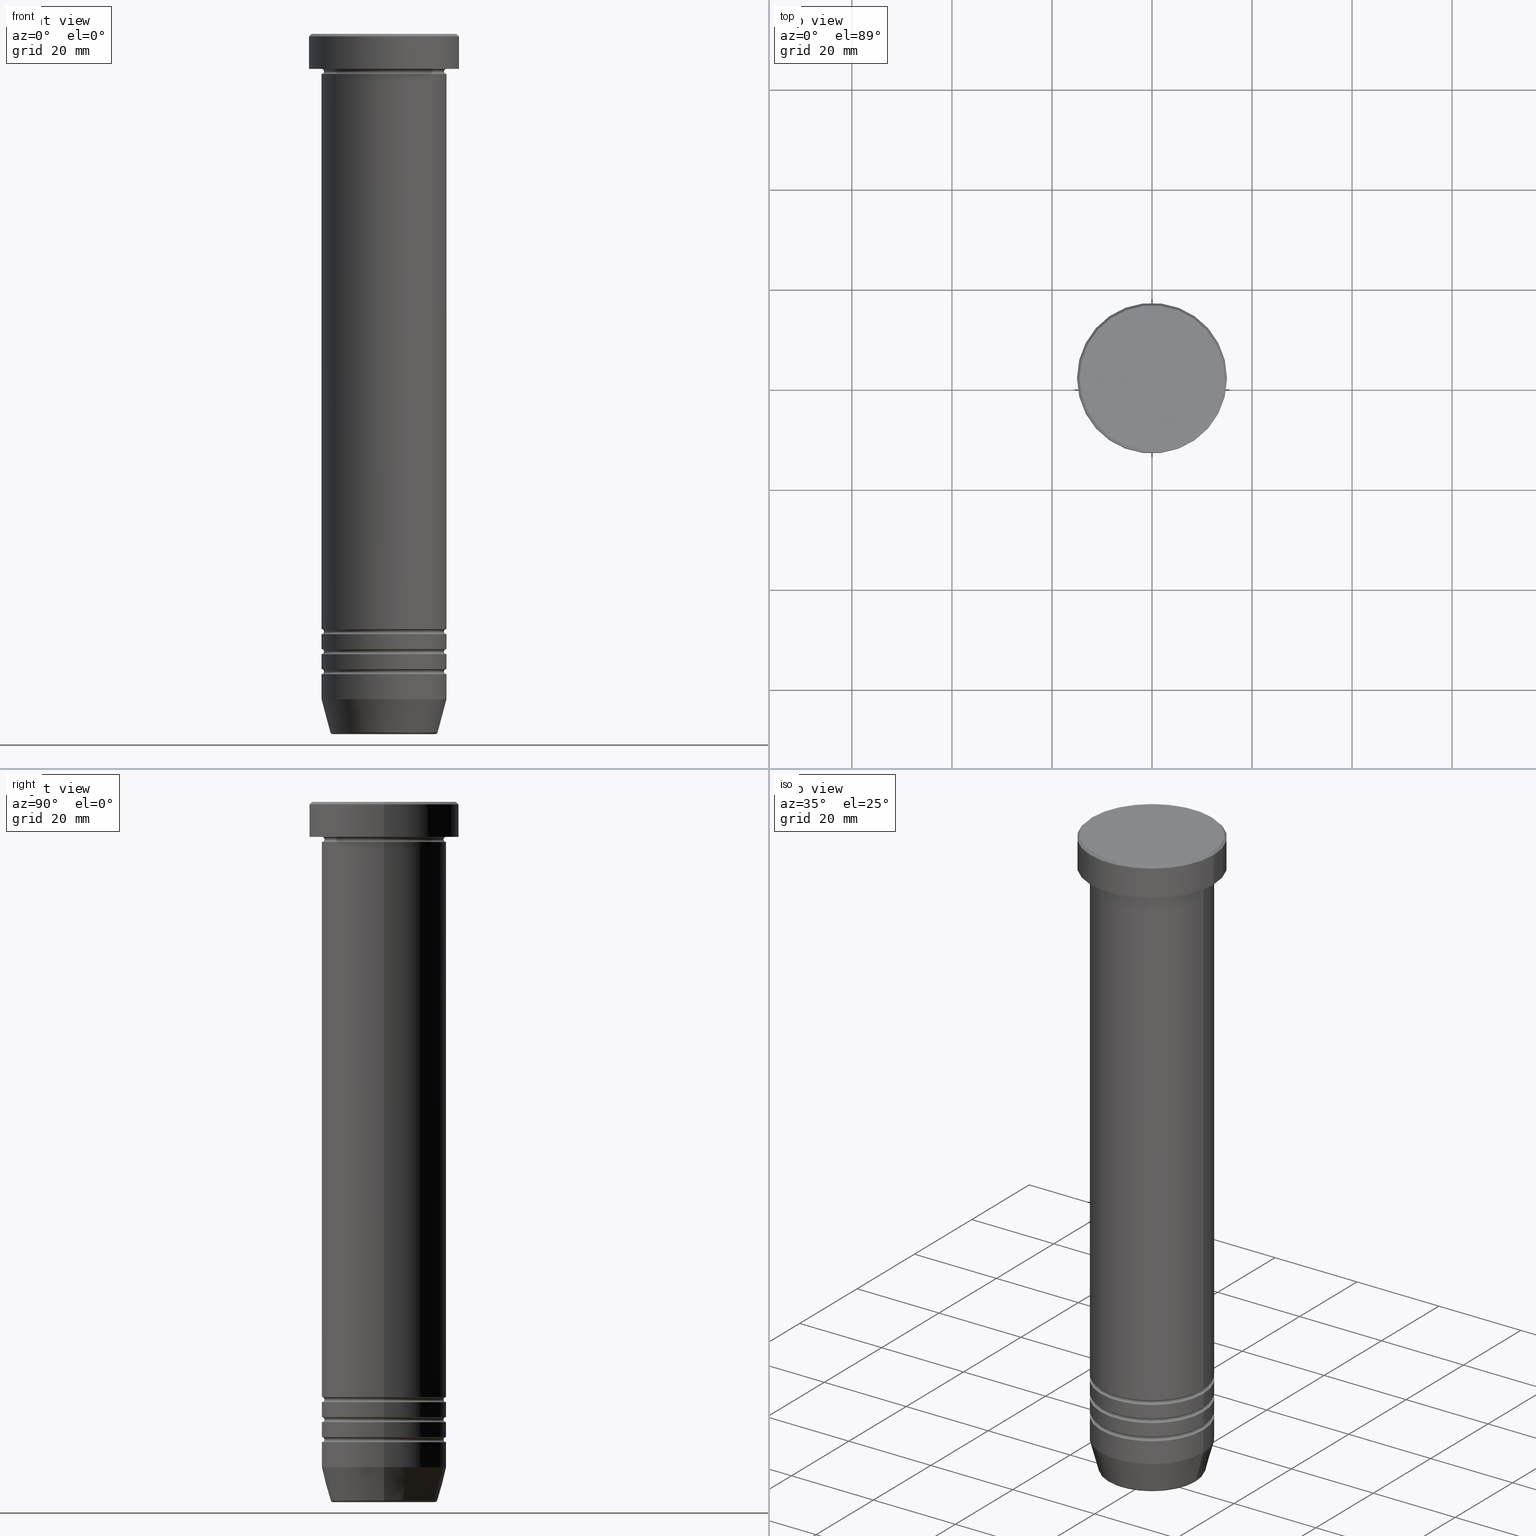
[diagram: canonical four-view strip — front | top / right | iso, engineering-drawing reading convention]
A machine part, canonical four-view strip (front | top / right | iso — engineering-drawing reading convention). The complete STEP part file that produces these views, byte-faithful:
ISO-10303-21;
HEADER;
FILE_DESCRIPTION (( 'STEP AP203' ),
    '1' );
FILE_NAME ('17f2.STEP',
    '2024-01-02T20:26:36',
    ( '' ),
    ( '' ),
    'SwSTEP 2.0',
    'SolidWorks 2019',
    '' );
FILE_SCHEMA (( 'CONFIG_CONTROL_DESIGN' ));
ENDSEC;

DATA;
#1 = DIRECTION ( 'NONE',  ( -0.000000000000000000, -0.000000000000000000, 1.000000000000000000 ) ) ;
#2 = CIRCLE ( 'NONE', #148, 11.99999999999999645 ) ;
#3 = AXIS2_PLACEMENT_3D ( 'NONE', #593, #79, #608 ) ;
#4 = FACE_OUTER_BOUND ( 'NONE', #696, .T. ) ;
#5 = AXIS2_PLACEMENT_3D ( 'NONE', #957, #621, #942 ) ;
#6 = AXIS2_PLACEMENT_3D ( 'NONE', #744, #666, #922 ) ;
#7 = ORIENTED_EDGE ( 'NONE', *, *, #718, .T. ) ;
#8 = DIRECTION ( 'NONE',  ( 1.000000000000000000, 0.000000000000000000, 0.000000000000000000 ) ) ;
#9 = EDGE_CURVE ( 'NONE', #185, #1032, #967, .T. ) ;
#10 = AXIS2_PLACEMENT_3D ( 'NONE', #135, #213, #457 ) ;
#11 = ORIENTED_EDGE ( 'NONE', *, *, #863, .F. ) ;
#12 = FACE_OUTER_BOUND ( 'NONE', #474, .T. ) ;
#13 = FACE_OUTER_BOUND ( 'NONE', #672, .T. ) ;
#14 = APPROVAL_DATE_TIME ( #322, #933 ) ;
#15 = ADVANCED_FACE ( 'NONE', ( #298 ), #178, .F. ) ;
#16 = DIRECTION ( 'NONE',  ( 1.000000000000000000, 0.000000000000000000, 0.000000000000000000 ) ) ;
#17 = CIRCLE ( 'NONE', #612, 10.24069215899264584 ) ;
#18 = CARTESIAN_POINT ( 'NONE',  ( -12.50000000000000000, 1.530808498934191521E-15, -30.00000000000000000 ) ) ;
#19 = AXIS2_PLACEMENT_3D ( 'NONE', #571, #583, #269 ) ;
#20 = DIRECTION ( 'NONE',  ( 1.000000000000000000, 0.000000000000000000, 0.000000000000000000 ) ) ;
#21 = CIRCLE ( 'NONE', #1015, 12.50000000000000000 ) ;
#22 = EDGE_CURVE ( 'NONE', #577, #431, #294, .T. ) ;
#23 = FACE_OUTER_BOUND ( 'NONE', #956, .T. ) ;
#24 = ORIENTED_EDGE ( 'NONE', *, *, #649, .T. ) ;
#25 = DIRECTION ( 'NONE',  ( -0.000000000000000000, -1.000000000000000000, -0.000000000000000000 ) ) ;
#26 = PLANE ( 'NONE',  #141 ) ;
#27 = ORIENTED_EDGE ( 'NONE', *, *, #139, .F. ) ;
#28 = CLOSED_SHELL ( 'NONE', ( #63, #426, #569, #163, #706, #121, #106, #297, #565, #989, #250, #634, #1006, #361, #1033, #760, #240, #796, #576, #953, #1013, #687, #516, #318, #127, #393 ) ) ;
#29 = CARTESIAN_POINT ( 'NONE',  ( 11.99999999999999645, 0.000000000000000000, -123.5000000000000000 ) ) ;
#30 = VERTEX_POINT ( 'NONE', #226 ) ;
#31 = DIRECTION ( 'NONE',  ( 1.224646799147353207E-16, 1.000000000000000000, 0.000000000000000000 ) ) ;
#32 = CYLINDRICAL_SURFACE ( 'NONE', #897, 12.50000000000000000 ) ;
#33 = VERTEX_POINT ( 'NONE', #546 ) ;
#34 = EDGE_LOOP ( 'NONE', ( #561, #554, #436, #823 ) ) ;
#35 = EDGE_CURVE ( 'NONE', #185, #601, #828, .T. ) ;
#36 = FACE_OUTER_BOUND ( 'NONE', #284, .T. ) ;
#37 = AXIS2_PLACEMENT_3D ( 'NONE', #743, #510, #504 ) ;
#38 = TOROIDAL_SURFACE ( 'NONE', #946, 12.49999999999999645, 0.5000000000000000000 ) ;
#39 = CIRCLE ( 'NONE', #386, 15.00000000000000000 ) ;
#40 = ORIENTED_EDGE ( 'NONE', *, *, #614, .T. ) ;
#41 = DIRECTION ( 'NONE',  ( 1.000000000000000000, 0.000000000000000000, 0.000000000000000000 ) ) ;
#42 = CARTESIAN_POINT ( 'NONE',  ( 0.000000000000000000, 0.000000000000000000, -120.0000000000000000 ) ) ;
#43 = ORIENTED_EDGE ( 'NONE', *, *, #273, .T. ) ;
#44 = ORIENTED_EDGE ( 'NONE', *, *, #1019, .T. ) ;
#45 = EDGE_CURVE ( 'NONE', #454, #762, #944, .T. ) ;
#46 = ORIENTED_EDGE ( 'NONE', *, *, #381, .F. ) ;
#47 = DIRECTION ( 'NONE',  ( -0.000000000000000000, -0.000000000000000000, 1.000000000000000000 ) ) ;
#48 = CARTESIAN_POINT ( 'NONE',  ( 0.000000000000000000, 0.000000000000000000, -120.0000000000000000 ) ) ;
#49 = CIRCLE ( 'NONE', #186, 12.50000000000000000 ) ;
#50 = DIRECTION ( 'NONE',  ( -0.000000000000000000, -0.000000000000000000, 1.000000000000000000 ) ) ;
#51 = DATE_AND_TIME ( #206, #783 ) ;
#52 = EDGE_CURVE ( 'NONE', #905, #452, #851, .T. ) ;
#53 = ORIENTED_EDGE ( 'NONE', *, *, #264, .F. ) ;
#54 = CIRCLE ( 'NONE', #524, 11.99999999999999645 ) ;
#55 = DIRECTION ( 'NONE',  ( -0.000000000000000000, -0.000000000000000000, 1.000000000000000000 ) ) ;
#56 = ORIENTED_EDGE ( 'NONE', *, *, #93, .T. ) ;
#57 = DIRECTION ( 'NONE',  ( 1.224646799147353207E-16, 1.000000000000000000, 0.000000000000000000 ) ) ;
#58 = ORIENTED_EDGE ( 'NONE', *, *, #1054, .T. ) ;
#59 = CARTESIAN_POINT ( 'NONE',  ( -12.50000000000000000, 1.530808498934191521E-15, -30.00000000000000000 ) ) ;
#60 = FACE_OUTER_BOUND ( 'NONE', #691, .T. ) ;
#61 = LINE ( 'NONE', #71, #630 ) ;
#62 = CARTESIAN_POINT ( 'NONE',  ( -12.00000000000000000, 1.500192328955507734E-15, -7.500000000000000000 ) ) ;
#63 = ADVANCED_FACE ( 'NONE', ( #60 ), #1022, .F. ) ;
#64 = CONICAL_SURFACE ( 'NONE', #766, 14.49999999999999112, 0.7853981633974533860 ) ;
#65 = AXIS2_PLACEMENT_3D ( 'NONE', #795, #223, #715 ) ;
#66 = ORIENTED_EDGE ( 'NONE', *, *, #1054, .F. ) ;
#67 = CARTESIAN_POINT ( 'NONE',  ( 0.000000000000000000, 0.000000000000000000, 0.000000000000000000 ) ) ;
#68 = DIRECTION ( 'NONE',  ( 1.000000000000000000, 0.000000000000000000, 0.000000000000000000 ) ) ;
#69 = CARTESIAN_POINT ( 'NONE',  ( -12.50000000000000000, 1.530808498934191521E-15, -132.9999999999999716 ) ) ;
#70 = EDGE_LOOP ( 'NONE', ( #596, #295, #653, #1021 ) ) ;
#71 = CARTESIAN_POINT ( 'NONE',  ( 12.50000000000000000, 0.000000000000000000, 0.000000000000000000 ) ) ;
#72 = CARTESIAN_POINT ( 'NONE',  ( 0.000000000000000000, 0.000000000000000000, 0.000000000000000000 ) ) ;
#73 = DIRECTION ( 'NONE',  ( 0.000000000000000000, 0.000000000000000000, -1.000000000000000000 ) ) ;
#74 = CALENDAR_DATE ( 2024, 2, 1 ) ;
#75 = EDGE_CURVE ( 'NONE', #1001, #525, #362, .T. ) ;
#76 = CARTESIAN_POINT ( 'NONE',  ( 0.000000000000000000, 0.000000000000000000, -127.5000000000000000 ) ) ;
#77 = DIRECTION ( 'NONE',  ( 1.000000000000000000, 0.000000000000000000, 0.000000000000000000 ) ) ;
#78 = AXIS2_PLACEMENT_3D ( 'NONE', #246, #834, #181 ) ;
#79 = DIRECTION ( 'NONE',  ( 0.000000000000000000, 0.000000000000000000, -1.000000000000000000 ) ) ;
#80 = EDGE_CURVE ( 'NONE', #635, #431, #249, .T. ) ;
#81 = ORIENTED_EDGE ( 'NONE', *, *, #464, .F. ) ;
#82 = DIRECTION ( 'NONE',  ( 0.000000000000000000, 0.000000000000000000, -1.000000000000000000 ) ) ;
#83 = AXIS2_PLACEMENT_3D ( 'NONE', #889, #481, #385 ) ;
#84 = DIRECTION ( 'NONE',  ( -0.000000000000000000, -0.000000000000000000, 1.000000000000000000 ) ) ;
#85 = VERTEX_POINT ( 'NONE', #985 ) ;
#86 = CARTESIAN_POINT ( 'NONE',  ( 12.50000000000000000, 0.000000000000000000, -132.9999999999999716 ) ) ;
#87 = DIRECTION ( 'NONE',  ( 1.000000000000000000, 0.000000000000000000, 0.000000000000000000 ) ) ;
#88 = ORIENTED_EDGE ( 'NONE', *, *, #245, .F. ) ;
#89 = CYLINDRICAL_SURFACE ( 'NONE', #961, 12.50000000000000000 ) ;
#90 = ORIENTED_EDGE ( 'NONE', *, *, #541, .F. ) ;
#91 = DIRECTION ( 'NONE',  ( 0.000000000000000000, 0.000000000000000000, -1.000000000000000000 ) ) ;
#92 = DIRECTION ( 'NONE',  ( -1.000000000000000000, 0.000000000000000000, 0.000000000000000000 ) ) ;
#93 = EDGE_CURVE ( 'NONE', #1001, #486, #954, .T. ) ;
#94 = SHAPE_DEFINITION_REPRESENTATION ( #735, #684 ) ;
#95 = AXIS2_PLACEMENT_3D ( 'NONE', #157, #640, #1044 ) ;
#96 = EDGE_LOOP ( 'NONE', ( #1025, #122, #679, #263 ) ) ;
#97 = FACE_OUTER_BOUND ( 'NONE', #96, .T. ) ;
#98 = AXIS2_PLACEMENT_3D ( 'NONE', #822, #749, #570 ) ;
#99 = CARTESIAN_POINT ( 'NONE',  ( 0.000000000000000000, 0.000000000000000000, -6.999999999999999112 ) ) ;
#100 = ORIENTED_EDGE ( 'NONE', *, *, #469, .T. ) ;
#101 = ORIENTED_EDGE ( 'NONE', *, *, #528, .F. ) ;
#102 = DIRECTION ( 'NONE',  ( -0.000000000000000000, -0.000000000000000000, 1.000000000000000000 ) ) ;
#103 = DIRECTION ( 'NONE',  ( -0.000000000000000000, -0.000000000000000000, 1.000000000000000000 ) ) ;
#104 = AXIS2_PLACEMENT_3D ( 'NONE', #42, #698, #1028 ) ;
#105 = LINE ( 'NONE', #947, #912 ) ;
#106 = ADVANCED_FACE ( 'NONE', ( #638 ), #196, .T. ) ;
#107 = EDGE_LOOP ( 'NONE', ( #373, #442, #58, #268 ) ) ;
#108 = DIRECTION ( 'NONE',  ( 0.000000000000000000, 0.000000000000000000, -1.000000000000000000 ) ) ;
#109 = CARTESIAN_POINT ( 'NONE',  ( 12.49999999999999645, 1.530808498934191127E-15, -119.5000000000000000 ) ) ;
#110 =( NAMED_UNIT ( * ) SI_UNIT ( $, .STERADIAN. ) SOLID_ANGLE_UNIT ( ) );
#111 = VERTEX_POINT ( 'NONE', #69 ) ;
#112 = APPROVAL ( #1042, 'NEUR�EN�' ) ;
#113 = AXIS2_PLACEMENT_3D ( 'NONE', #868, #603, #774 ) ;
#114 = DIRECTION ( 'NONE',  ( 1.000000000000000000, 0.000000000000000000, 0.000000000000000000 ) ) ;
#115 = AXIS2_PLACEMENT_3D ( 'NONE', #76, #647, #983 ) ;
#116 = AXIS2_PLACEMENT_3D ( 'NONE', #225, #716, #906 ) ;
#117 = DIRECTION ( 'NONE',  ( -1.000000000000000000, -1.224646799147353454E-16, 0.000000000000000000 ) ) ;
#118 = EDGE_LOOP ( 'NONE', ( #349, #24 ) ) ;
#119 = CARTESIAN_POINT ( 'NONE',  ( -10.62435565298212481, 1.301108314342764740E-15, -140.0000000000000000 ) ) ;
#120 = DESIGN_CONTEXT ( 'detailed design', #585, 'design' ) ;
#121 = ADVANCED_FACE ( 'NONE', ( #320 ), #1003, .F. ) ;
#122 = ORIENTED_EDGE ( 'NONE', *, *, #345, .T. ) ;
#123 = CARTESIAN_POINT ( 'NONE',  ( -14.49999999999999112, 0.000000000000000000, 0.000000000000000000 ) ) ;
#124 = ORIENTED_EDGE ( 'NONE', *, *, #895, .T. ) ;
#125 = CARTESIAN_POINT ( 'NONE',  ( 0.000000000000000000, 0.000000000000000000, -119.5000000000000000 ) ) ;
#126 = ORIENTED_EDGE ( 'NONE', *, *, #872, .F. ) ;
#127 = ADVANCED_FACE ( 'NONE', ( #1053 ), #756, .F. ) ;
#128 = ORIENTED_EDGE ( 'NONE', *, *, #208, .F. ) ;
#129 = DIRECTION ( 'NONE',  ( 1.000000000000000000, 0.000000000000000000, 0.000000000000000000 ) ) ;
#130 = ORIENTED_EDGE ( 'NONE', *, *, #753, .F. ) ;
#131 = CIRCLE ( 'NONE', #877, 12.50000000000000000 ) ;
#132 = ORIENTED_EDGE ( 'NONE', *, *, #381, .T. ) ;
#133 = AXIS2_PLACEMENT_3D ( 'NONE', #680, #418, #832 ) ;
#134 = DIRECTION ( 'NONE',  ( -1.000000000000000000, 0.000000000000000000, 0.000000000000000000 ) ) ;
#135 = CARTESIAN_POINT ( 'NONE',  ( 0.000000000000000000, 0.000000000000000000, -6.999999999999998224 ) ) ;
#136 = PERSON_AND_ORGANIZATION_ROLE ( 'design_supplier' ) ;
#137 = EDGE_LOOP ( 'NONE', ( #833, #930, #214, #1037 ) ) ;
#138 = LINE ( 'NONE', #461, #368 ) ;
#139 = EDGE_CURVE ( 'NONE', #454, #776, #380, .T. ) ;
#140 = CARTESIAN_POINT ( 'NONE',  ( 12.49999999999999645, 0.000000000000000000, -127.5000000000000000 ) ) ;
#141 = AXIS2_PLACEMENT_3D ( 'NONE', #189, #853, #87 ) ;
#142 = ORIENTED_EDGE ( 'NONE', *, *, #789, .T. ) ;
#143 = DIRECTION ( 'NONE',  ( -1.000000000000000000, 0.000000000000000000, 0.000000000000000000 ) ) ;
#144 = CC_DESIGN_PERSON_AND_ORGANIZATION_ASSIGNMENT ( #221, #136, ( #646 ) ) ;
#145 = CARTESIAN_POINT ( 'NONE',  ( -12.49999999999999645, 1.530808498934191127E-15, -119.5000000000000000 ) ) ;
#146 = CARTESIAN_POINT ( 'NONE',  ( -12.49999999999999645, 0.000000000000000000, -119.5000000000000000 ) ) ;
#147 = AXIS2_PLACEMENT_3D ( 'NONE', #924, #108, #597 ) ;
#148 = AXIS2_PLACEMENT_3D ( 'NONE', #654, #330, #831 ) ;
#149 = AXIS2_PLACEMENT_3D ( 'NONE', #688, #519, #117 ) ;
#150 = ORIENTED_EDGE ( 'NONE', *, *, #388, .T. ) ;
#151 = CARTESIAN_POINT ( 'NONE',  ( 0.000000000000000000, 0.000000000000000000, -123.5000000000000000 ) ) ;
#152 = CIRCLE ( 'NONE', #800, 15.00000000000000000 ) ;
#153 = CYLINDRICAL_SURFACE ( 'NONE', #713, 12.50000000000000000 ) ;
#154 = DIRECTION ( 'NONE',  ( -1.000000000000000000, 0.000000000000000000, 0.000000000000000000 ) ) ;
#155 = COORDINATED_UNIVERSAL_TIME_OFFSET ( 1, 0, .AHEAD. ) ;
#156 = ORIENTED_EDGE ( 'NONE', *, *, #927, .F. ) ;
#157 = CARTESIAN_POINT ( 'NONE',  ( 0.000000000000000000, 0.000000000000000000, -30.00000000000000000 ) ) ;
#158 = ORIENTED_EDGE ( 'NONE', *, *, #1047, .T. ) ;
#159 = FACE_OUTER_BOUND ( 'NONE', #339, .T. ) ;
#160 = PRODUCT ( '17f2', '17f2', '', ( #869 ) ) ;
#161 = VECTOR ( 'NONE', #50, 1000.000000000000000 ) ;
#162 = CARTESIAN_POINT ( 'NONE',  ( 0.000000000000000000, 0.000000000000000000, -119.5000000000000000 ) ) ;
#163 = ADVANCED_FACE ( 'NONE', ( #728 ), #792, .F. ) ;
#164 = CARTESIAN_POINT ( 'NONE',  ( 0.000000000000000000, 0.000000000000000000, -128.0000000000000000 ) ) ;
#165 = ORIENTED_EDGE ( 'NONE', *, *, #890, .F. ) ;
#166 = CARTESIAN_POINT ( 'NONE',  ( 0.000000000000000000, 0.000000000000000000, -128.0000000000000000 ) ) ;
#167 = DIRECTION ( 'NONE',  ( -1.000000000000000000, -1.224646799147353454E-16, 0.000000000000000000 ) ) ;
#168 = CIRCLE ( 'NONE', #839, 0.5000000000000004441 ) ;
#169 = LOCAL_TIME ( 21, 26, 36.00000000000000000, #155 ) ;
#170 = EDGE_CURVE ( 'NONE', #773, #962, #333, .T. ) ;
#171 = DIRECTION ( 'NONE',  ( 1.000000000000000000, 0.000000000000000000, 0.000000000000000000 ) ) ;
#172 = CIRCLE ( 'NONE', #5, 0.5000000000000004441 ) ;
#173 = FACE_OUTER_BOUND ( 'NONE', #742, .T. ) ;
#174 = ORIENTED_EDGE ( 'NONE', *, *, #176, .F. ) ;
#175 = CYLINDRICAL_SURFACE ( 'NONE', #285, 15.00000000000000000 ) ;
#176 = EDGE_CURVE ( 'NONE', #724, #849, #316, .T. ) ;
#177 = CARTESIAN_POINT ( 'NONE',  ( 12.50000000000000000, 0.000000000000000000, 0.000000000000000000 ) ) ;
#178 = TOROIDAL_SURFACE ( 'NONE', #459, 12.50000000000000000, 0.5000000000000000000 ) ;
#179 = ORIENTED_EDGE ( 'NONE', *, *, #811, .F. ) ;
#180 = APPROVAL_ROLE ( '' ) ;
#181 = DIRECTION ( 'NONE',  ( 1.000000000000000000, 0.000000000000000000, 0.000000000000000000 ) ) ;
#182 = VERTEX_POINT ( 'NONE', #553 ) ;
#183 = FACE_OUTER_BOUND ( 'NONE', #611, .T. ) ;
#184 = DIRECTION ( 'NONE',  ( -0.000000000000000000, -0.000000000000000000, 1.000000000000000000 ) ) ;
#185 = VERTEX_POINT ( 'NONE', #891 ) ;
#186 = AXIS2_PLACEMENT_3D ( 'NONE', #813, #703, #395 ) ;
#187 = ORIENTED_EDGE ( 'NONE', *, *, #825, .T. ) ;
#188 = AXIS2_PLACEMENT_3D ( 'NONE', #652, #344, #657 ) ;
#189 = CARTESIAN_POINT ( 'NONE',  ( 0.000000000000000000, 0.000000000000000000, 0.000000000000000000 ) ) ;
#190 = EDGE_CURVE ( 'NONE', #577, #617, #606, .T. ) ;
#191 = CARTESIAN_POINT ( 'NONE',  ( 15.00000000000000000, 0.000000000000000000, -0.5000000000000039968 ) ) ;
#192 = ORIENTED_EDGE ( 'NONE', *, *, #283, .F. ) ;
#193 = DIRECTION ( 'NONE',  ( -0.000000000000000000, -0.000000000000000000, 1.000000000000000000 ) ) ;
#194 = ADVANCED_FACE ( 'NONE', ( #342 ), #26, .T. ) ;
#195 = CARTESIAN_POINT ( 'NONE',  ( 14.49999999999999112, 1.806354028742345013E-15, 0.000000000000000000 ) ) ;
#196 = TOROIDAL_SURFACE ( 'NONE', #973, 10.24069215899264584, 0.5000000000000000000 ) ;
#197 = ORIENTED_EDGE ( 'NONE', *, *, #732, .T. ) ;
#198 = LINE ( 'NONE', #369, #289 ) ;
#199 = APPLICATION_PROTOCOL_DEFINITION ( 'international standard', 'config_control_design', 1994, #627 ) ;
#200 = EDGE_LOOP ( 'NONE', ( #128, #522, #132, #428 ) ) ;
#201 = CIRCLE ( 'NONE', #341, 12.50000000000000000 ) ;
#202 = DIRECTION ( 'NONE',  ( 1.000000000000000000, 0.000000000000000000, 0.000000000000000000 ) ) ;
#203 = AXIS2_PLACEMENT_3D ( 'NONE', #1056, #379, #893 ) ;
#204 = CARTESIAN_POINT ( 'NONE',  ( 12.50000000000000000, 0.000000000000000000, -7.500000000000000000 ) ) ;
#205 = VECTOR ( 'NONE', #1061, 1000.000000000000000 ) ;
#206 = CALENDAR_DATE ( 2024, 2, 1 ) ;
#207 = ORIENTED_EDGE ( 'NONE', *, *, #863, .T. ) ;
#208 = EDGE_CURVE ( 'NONE', #182, #477, #357, .T. ) ;
#209 = CARTESIAN_POINT ( 'NONE',  ( -12.50000000000000000, 1.530808498934191521E-15, 0.000000000000000000 ) ) ;
#210 = CARTESIAN_POINT ( 'NONE',  ( 0.000000000000000000, 0.000000000000000000, 0.000000000000000000 ) ) ;
#211 = ORIENTED_EDGE ( 'NONE', *, *, #656, .F. ) ;
#212 = DIRECTION ( 'NONE',  ( 1.000000000000000000, 0.000000000000000000, 0.000000000000000000 ) ) ;
#213 = DIRECTION ( 'NONE',  ( -0.000000000000000000, -0.000000000000000000, 1.000000000000000000 ) ) ;
#214 = ORIENTED_EDGE ( 'NONE', *, *, #959, .T. ) ;
#215 = CARTESIAN_POINT ( 'NONE',  ( 0.000000000000000000, 0.000000000000000000, 0.000000000000000000 ) ) ;
#216 = CIRCLE ( 'NONE', #763, 0.5000000000000004441 ) ;
#217 = CARTESIAN_POINT ( 'NONE',  ( 12.49999999999999645, 1.530808498934191127E-15, -127.5000000000000000 ) ) ;
#218 = APPROVAL_PERSON_ORGANIZATION ( #772, #681, #1020 ) ;
#219 = EDGE_CURVE ( 'NONE', #762, #905, #1007, .T. ) ;
#220 = CIRCLE ( 'NONE', #595, 12.50000000000000000 ) ;
#221 = PERSON_AND_ORGANIZATION ( #252, #994 ) ;
#222 = EDGE_LOOP ( 'NONE', ( #370, #613, #466, #991 ) ) ;
#223 = DIRECTION ( 'NONE',  ( -0.000000000000000000, -0.000000000000000000, 1.000000000000000000 ) ) ;
#224 = EDGE_LOOP ( 'NONE', ( #40, #158, #730, #446 ) ) ;
#225 = CARTESIAN_POINT ( 'NONE',  ( -12.49999999999999645, 0.000000000000000000, -127.5000000000000000 ) ) ;
#226 = CARTESIAN_POINT ( 'NONE',  ( 12.50000000000000000, 0.000000000000000000, -30.00000000000000000 ) ) ;
#227 = EDGE_CURVE ( 'NONE', #431, #844, #886, .T. ) ;
#228 = ORIENTED_EDGE ( 'NONE', *, *, #350, .T. ) ;
#229 = DIRECTION ( 'NONE',  ( 0.000000000000000000, 0.000000000000000000, -1.000000000000000000 ) ) ;
#230 = CARTESIAN_POINT ( 'NONE',  ( 0.000000000000000000, 0.000000000000000000, -123.5000000000000000 ) ) ;
#231 = CARTESIAN_POINT ( 'NONE',  ( 0.000000000000000000, 0.000000000000000000, -123.5000000000000000 ) ) ;
#232 = VERTEX_POINT ( 'NONE', #761 ) ;
#233 = CYLINDRICAL_SURFACE ( 'NONE', #782, 15.00000000000000000 ) ;
#234 = LINE ( 'NONE', #487, #205 ) ;
#235 = DIRECTION ( 'NONE',  ( 0.000000000000000000, 0.000000000000000000, -1.000000000000000000 ) ) ;
#236 = CIRCLE ( 'NONE', #115, 11.99999999999999645 ) ;
#237 = LOCAL_TIME ( 21, 26, 36.00000000000000000, #758 ) ;
#238 = ORIENTED_EDGE ( 'NONE', *, *, #219, .T. ) ;
#239 = DIRECTION ( 'NONE',  ( -0.000000000000000000, -0.000000000000000000, 1.000000000000000000 ) ) ;
#240 = ADVANCED_FACE ( 'NONE', ( #430 ), #757, .F. ) ;
#241 = DIRECTION ( 'NONE',  ( -0.000000000000000000, -0.000000000000000000, 1.000000000000000000 ) ) ;
#242 = ORIENTED_EDGE ( 'NONE', *, *, #277, .F. ) ;
#243 = CARTESIAN_POINT ( 'NONE',  ( 0.000000000000000000, 0.000000000000000000, -124.0000000000000000 ) ) ;
#244 = CARTESIAN_POINT ( 'NONE',  ( 0.000000000000000000, 0.000000000000000000, -139.5000000000000000 ) ) ;
#245 = EDGE_CURVE ( 'NONE', #182, #378, #325, .T. ) ;
#246 = CARTESIAN_POINT ( 'NONE',  ( 0.000000000000000000, 0.000000000000000000, -139.5000000000000000 ) ) ;
#247 = VERTEX_POINT ( 'NONE', #265 ) ;
#248 = CARTESIAN_POINT ( 'NONE',  ( 10.24069215899264584, 0.000000000000000000, -140.0000000000000000 ) ) ;
#249 = LINE ( 'NONE', #810, #852 ) ;
#250 = ADVANCED_FACE ( 'NONE', ( #13 ), #32, .T. ) ;
#251 = CIRCLE ( 'NONE', #1027, 12.49999999999999289 ) ;
#252 = PERSON ( 'NEUR�EN�', 'NEUR�EN�', 'NEUR�EN�', ('NEUR�EN�'), ('NEUR�EN�'), ('NEUR�EN�') ) ;
#253 = AXIS2_PLACEMENT_3D ( 'NONE', #210, #366, #1030 ) ;
#254 = ORIENTED_EDGE ( 'NONE', *, *, #413, .F. ) ;
#255 = DIRECTION ( 'NONE',  ( 1.000000000000000000, 0.000000000000000000, 0.000000000000000000 ) ) ;
#256 = AXIS2_PLACEMENT_3D ( 'NONE', #705, #1046, #114 ) ;
#257 = CARTESIAN_POINT ( 'NONE',  ( -12.49999999999999645, 1.530808498934191127E-15, 0.000000000000000000 ) ) ;
#258 = ORIENTED_EDGE ( 'NONE', *, *, #9, .T. ) ;
#259 = CARTESIAN_POINT ( 'NONE',  ( 0.000000000000000000, 0.000000000000000000, -127.5000000000000000 ) ) ;
#260 = DIRECTION ( 'NONE',  ( 0.000000000000000000, 0.000000000000000000, -1.000000000000000000 ) ) ;
#261 = ORIENTED_EDGE ( 'NONE', *, *, #208, .T. ) ;
#262 = CARTESIAN_POINT ( 'NONE',  ( 0.000000000000000000, 0.000000000000000000, 0.000000000000000000 ) ) ;
#263 = ORIENTED_EDGE ( 'NONE', *, *, #841, .F. ) ;
#264 = EDGE_CURVE ( 'NONE', #849, #844, #843, .T. ) ;
#265 = CARTESIAN_POINT ( 'NONE',  ( -15.00000000000000000, 1.836970198721029589E-15, -0.5000000000000039968 ) ) ;
#266 = DIRECTION ( 'NONE',  ( -0.000000000000000000, -0.000000000000000000, 1.000000000000000000 ) ) ;
#267 = TOROIDAL_SURFACE ( 'NONE', #874, 12.50000000000000000, 0.5000000000000000000 ) ;
#268 = ORIENTED_EDGE ( 'NONE', *, *, #620, .F. ) ;
#269 = DIRECTION ( 'NONE',  ( -1.000000000000000000, 0.000000000000000000, 0.000000000000000000 ) ) ;
#270 = CC_DESIGN_APPROVAL ( #681, ( #740 ) ) ;
#271 = AXIS2_PLACEMENT_3D ( 'NONE', #1023, #281, #610 ) ;
#272 = DIRECTION ( 'NONE',  ( -1.224646799147353207E-16, 1.000000000000000000, 0.000000000000000000 ) ) ;
#273 = EDGE_CURVE ( 'NONE', #111, #762, #982, .T. ) ;
#274 = ORIENTED_EDGE ( 'NONE', *, *, #35, .F. ) ;
#275 = CARTESIAN_POINT ( 'NONE',  ( -12.50000000000000000, 0.000000000000000000, -7.500000000000000000 ) ) ;
#276 = FACE_OUTER_BOUND ( 'NONE', #394, .T. ) ;
#277 = EDGE_CURVE ( 'NONE', #85, #525, #966, .T. ) ;
#278 = VECTOR ( 'NONE', #184, 1000.000000000000000 ) ;
#279 = ORIENTED_EDGE ( 'NONE', *, *, #674, .T. ) ;
#280 = CARTESIAN_POINT ( 'NONE',  ( -10.72365507213717706, 1.422038742429749332E-15, -139.6294095225512990 ) ) ;
#281 = DIRECTION ( 'NONE',  ( 0.000000000000000000, 0.000000000000000000, -1.000000000000000000 ) ) ;
#282 = ORIENTED_EDGE ( 'NONE', *, *, #975, .F. ) ;
#283 = EDGE_CURVE ( 'NONE', #452, #512, #54, .T. ) ;
#284 = EDGE_LOOP ( 'NONE', ( #7, #566, #460, #329 ) ) ;
#285 = AXIS2_PLACEMENT_3D ( 'NONE', #334, #658, #255 ) ;
#286 = CARTESIAN_POINT ( 'NONE',  ( 12.49999999999999289, 0.000000000000000000, -127.0000000000000000 ) ) ;
#287 = APPROVAL_PERSON_ORGANIZATION ( #903, #933, #180 ) ;
#288 = ORIENTED_EDGE ( 'NONE', *, *, #358, .F. ) ;
#289 = VECTOR ( 'NONE', #697, 1000.000000000000000 ) ;
#290 = AXIS2_PLACEMENT_3D ( 'NONE', #739, #505, #1010 ) ;
#291 = CARTESIAN_POINT ( 'NONE',  ( 0.000000000000000000, 0.000000000000000000, -140.0000000000000000 ) ) ;
#292 = DIRECTION ( 'NONE',  ( 1.000000000000000000, 0.000000000000000000, 0.000000000000000000 ) ) ;
#293 = PERSON_AND_ORGANIZATION_ROLE ( 'creator' ) ;
#294 = CIRCLE ( 'NONE', #104, 12.50000000000000000 ) ;
#295 = ORIENTED_EDGE ( 'NONE', *, *, #93, .F. ) ;
#296 = CARTESIAN_POINT ( 'NONE',  ( 11.99999999999999645, 0.000000000000000000, -127.5000000000000000 ) ) ;
#297 = ADVANCED_FACE ( 'NONE', ( #36 ), #586, .T. ) ;
#298 = FACE_OUTER_BOUND ( 'NONE', #224, .T. ) ;
#299 = PERSON_AND_ORGANIZATION_ROLE ( 'creator' ) ;
#300 = ORIENTED_EDGE ( 'NONE', *, *, #620, .T. ) ;
#301 = CARTESIAN_POINT ( 'NONE',  ( 0.000000000000000000, 0.000000000000000000, -123.0000000000000000 ) ) ;
#302 = DIRECTION ( 'NONE',  ( -1.000000000000000000, 0.000000000000000000, 0.000000000000000000 ) ) ;
#303 = CIRCLE ( 'NONE', #337, 12.49999999999999822 ) ;
#304 = CC_DESIGN_DATE_AND_TIME_ASSIGNMENT ( #352, #935, ( #740 ) ) ;
#305 = CC_DESIGN_SECURITY_CLASSIFICATION ( #472, ( #646 ) ) ;
#306 = AXIS2_PLACEMENT_3D ( 'NONE', #984, #556, #1057 ) ;
#307 = ORIENTED_EDGE ( 'NONE', *, *, #45, .T. ) ;
#308 = CARTESIAN_POINT ( 'NONE',  ( 12.49999999999999289, 0.000000000000000000, -119.0000000000000000 ) ) ;
#309 = CARTESIAN_POINT ( 'NONE',  ( -11.99999999999999645, 1.500192328955507143E-15, -127.5000000000000000 ) ) ;
#310 = DIRECTION ( 'NONE',  ( -0.000000000000000000, -0.000000000000000000, 1.000000000000000000 ) ) ;
#311 = CC_DESIGN_DATE_AND_TIME_ASSIGNMENT ( #651, #827, ( #472 ) ) ;
#312 = ADVANCED_FACE ( 'NONE', ( #276 ), #670, .T. ) ;
#313 = ORIENTED_EDGE ( 'NONE', *, *, #626, .T. ) ;
#314 = DIRECTION ( 'NONE',  ( 1.000000000000000000, 0.000000000000000000, 0.000000000000000000 ) ) ;
#315 = ORIENTED_EDGE ( 'NONE', *, *, #176, .T. ) ;
#316 = CIRCLE ( 'NONE', #462, 12.49999999999999289 ) ;
#317 = CARTESIAN_POINT ( 'NONE',  ( 0.000000000000000000, 0.000000000000000000, -119.0000000000000000 ) ) ;
#318 = ADVANCED_FACE ( 'NONE', ( #424 ), #664, .F. ) ;
#319 = CARTESIAN_POINT ( 'NONE',  ( -15.00000000000000000, 1.836970198721029589E-15, -6.999999999999998224 ) ) ;
#320 = FACE_OUTER_BOUND ( 'NONE', #530, .T. ) ;
#321 = CIRCLE ( 'NONE', #65, 12.50000000000000000 ) ;
#322 = DATE_AND_TIME ( #580, #323 ) ;
#323 = LOCAL_TIME ( 21, 26, 36.00000000000000000, #403 ) ;
#324 = CARTESIAN_POINT ( 'NONE',  ( 0.000000000000000000, 0.000000000000000000, -127.0000000000000000 ) ) ;
#325 = CIRCLE ( 'NONE', #290, 12.49999999999999289 ) ;
#326 = DIRECTION ( 'NONE',  ( -0.000000000000000000, -0.000000000000000000, 1.000000000000000000 ) ) ;
#327 = APPROVAL_STATUS ( 'not_yet_approved' ) ;
#328 = FACE_OUTER_BOUND ( 'NONE', #222, .T. ) ;
#329 = ORIENTED_EDGE ( 'NONE', *, *, #80, .F. ) ;
#330 = DIRECTION ( 'NONE',  ( 0.000000000000000000, 0.000000000000000000, -1.000000000000000000 ) ) ;
#331 = DIRECTION ( 'NONE',  ( -0.000000000000000000, -0.000000000000000000, 1.000000000000000000 ) ) ;
#332 = EDGE_CURVE ( 'NONE', #416, #232, #493, .T. ) ;
#333 = CIRCLE ( 'NONE', #938, 0.5000000000000004441 ) ;
#334 = CARTESIAN_POINT ( 'NONE',  ( 0.000000000000000000, 0.000000000000000000, 0.000000000000000000 ) ) ;
#335 = DIRECTION ( 'NONE',  ( -1.000000000000000000, 0.000000000000000000, -0.000000000000000000 ) ) ;
#336 = CIRCLE ( 'NONE', #943, 12.50000000000000000 ) ;
#337 = AXIS2_PLACEMENT_3D ( 'NONE', #429, #920, #910 ) ;
#338 = DIRECTION ( 'NONE',  ( -0.000000000000000000, -0.000000000000000000, 1.000000000000000000 ) ) ;
#339 = EDGE_LOOP ( 'NONE', ( #434, #977, #628, #211 ) ) ;
#340 = CARTESIAN_POINT ( 'NONE',  ( 0.000000000000000000, 0.000000000000000000, 0.000000000000000000 ) ) ;
#341 = AXIS2_PLACEMENT_3D ( 'NONE', #166, #644, #731 ) ;
#342 = FACE_OUTER_BOUND ( 'NONE', #794, .T. ) ;
#343 = ORIENTED_EDGE ( 'NONE', *, *, #345, .F. ) ;
#344 = DIRECTION ( 'NONE',  ( 0.000000000000000000, 0.000000000000000000, -1.000000000000000000 ) ) ;
#345 = EDGE_CURVE ( 'NONE', #683, #85, #496, .T. ) ;
#346 = ORIENTED_EDGE ( 'NONE', *, *, #413, .T. ) ;
#347 = CARTESIAN_POINT ( 'NONE',  ( 0.000000000000000000, -1.734723475976807094E-15, -30.00000000000000000 ) ) ;
#348 = CYLINDRICAL_SURFACE ( 'NONE', #1012, 12.49999999999999645 ) ;
#349 = ORIENTED_EDGE ( 'NONE', *, *, #464, .T. ) ;
#350 = EDGE_CURVE ( 'NONE', #30, #415, #594, .T. ) ;
#351 = CARTESIAN_POINT ( 'NONE',  ( 0.000000000000000000, 0.000000000000000000, 0.000000000000000000 ) ) ;
#352 = DATE_AND_TIME ( #928, #237 ) ;
#353 = CIRCLE ( 'NONE', #521, 12.49999999999999289 ) ;
#354 = ORIENTED_EDGE ( 'NONE', *, *, #273, .F. ) ;
#355 = CC_DESIGN_PERSON_AND_ORGANIZATION_ASSIGNMENT ( #873, #299, ( #646 ) ) ;
#356 = AXIS2_PLACEMENT_3D ( 'NONE', #125, #950, #449 ) ;
#357 = LINE ( 'NONE', #257, #738 ) ;
#358 = EDGE_CURVE ( 'NONE', #776, #111, #690, .T. ) ;
#359 = ORIENTED_EDGE ( 'NONE', *, *, #52, .T. ) ;
#360 = CARTESIAN_POINT ( 'NONE',  ( -12.50000000000000000, 1.530808498934191521E-15, -124.0000000000000000 ) ) ;
#361 = ADVANCED_FACE ( 'NONE', ( #1026 ), #864, .T. ) ;
#362 = CIRCLE ( 'NONE', #655, 0.5000000000000004441 ) ;
#363 = PERSON_AND_ORGANIZATION ( #252, #994 ) ;
#364 = ORIENTED_EDGE ( 'NONE', *, *, #847, .T. ) ;
#365 = CARTESIAN_POINT ( 'NONE',  ( 0.000000000000000000, 0.000000000000000000, -6.999999999999998224 ) ) ;
#366 = DIRECTION ( 'NONE',  ( 0.000000000000000000, 0.000000000000000000, 1.000000000000000000 ) ) ;
#367 = EDGE_LOOP ( 'NONE', ( #207, #261, #736, #46 ) ) ;
#368 = VECTOR ( 'NONE', #491, 1000.000000000000000 ) ;
#369 = CARTESIAN_POINT ( 'NONE',  ( 14.49999999999999112, 1.775737858763660832E-15, 0.000000000000000000 ) ) ;
#370 = ORIENTED_EDGE ( 'NONE', *, *, #139, .T. ) ;
#371 = AXIS2_PLACEMENT_3D ( 'NONE', #501, #925, #846 ) ;
#372 = APPROVAL_DATE_TIME ( #51, #681 ) ;
#373 = ORIENTED_EDGE ( 'NONE', *, *, #375, .F. ) ;
#374 = DIRECTION ( 'NONE',  ( 1.000000000000000000, 0.000000000000000000, 0.000000000000000000 ) ) ;
#375 = EDGE_CURVE ( 'NONE', #1060, #1032, #198, .T. ) ;
#376 = CARTESIAN_POINT ( 'NONE',  ( 0.000000000000000000, 0.000000000000000000, -124.0000000000000000 ) ) ;
#377 = EDGE_LOOP ( 'NONE', ( #780, #1041, #27, #542 ) ) ;
#378 = VERTEX_POINT ( 'NONE', #286 ) ;
#379 = DIRECTION ( 'NONE',  ( 1.224646799147353207E-16, 1.000000000000000000, 0.000000000000000000 ) ) ;
#380 = CIRCLE ( 'NONE', #986, 10.72365507213717706 ) ;
#381 = EDGE_CURVE ( 'NONE', #378, #773, #531, .T. ) ;
#382 = CARTESIAN_POINT ( 'NONE',  ( 10.72365507213717706, 0.000000000000000000, -139.6294095225512990 ) ) ;
#383 = ORIENTED_EDGE ( 'NONE', *, *, #872, .T. ) ;
#384 = DIRECTION ( 'NONE',  ( 1.000000000000000000, 0.000000000000000000, 0.000000000000000000 ) ) ;
#385 = DIRECTION ( 'NONE',  ( 0.000000000000000000, 0.000000000000000000, -1.000000000000000000 ) ) ;
#386 = AXIS2_PLACEMENT_3D ( 'NONE', #365, #1039, #202 ) ;
#387 = AXIS2_PLACEMENT_3D ( 'NONE', #422, #25, #845 ) ;
#388 = EDGE_CURVE ( 'NONE', #431, #577, #709, .T. ) ;
#389 = AXIS2_PLACEMENT_3D ( 'NONE', #230, #567, #552 ) ;
#390 = ORIENTED_EDGE ( 'NONE', *, *, #170, .F. ) ;
#391 = DIRECTION ( 'NONE',  ( -0.000000000000000000, -0.000000000000000000, 1.000000000000000000 ) ) ;
#392 = CARTESIAN_POINT ( 'NONE',  ( 0.000000000000000000, 0.000000000000000000, -6.999999999999999112 ) ) ;
#393 = ADVANCED_FACE ( 'NONE', ( #445 ), #990, .F. ) ;
#394 = EDGE_LOOP ( 'NONE', ( #1017, #399 ) ) ;
#395 = DIRECTION ( 'NONE',  ( 1.000000000000000000, 0.000000000000000000, 0.000000000000000000 ) ) ;
#396 = DIRECTION ( 'NONE',  ( 1.224646799147353207E-16, 1.000000000000000000, 0.000000000000000000 ) ) ;
#397 = DIRECTION ( 'NONE',  ( 1.000000000000000000, 0.000000000000000000, 0.000000000000000000 ) ) ;
#398 = DIRECTION ( 'NONE',  ( 1.000000000000000000, 0.000000000000000000, 0.000000000000000000 ) ) ;
#399 = ORIENTED_EDGE ( 'NONE', *, *, #469, .F. ) ;
#400 = CARTESIAN_POINT ( 'NONE',  ( 12.50000000000000000, 0.000000000000000000, -8.000000000000000000 ) ) ;
#401 = DIRECTION ( 'NONE',  ( -1.000000000000000000, 0.000000000000000000, 0.000000000000000000 ) ) ;
#402 = AXIS2_PLACEMENT_3D ( 'NONE', #275, #602, #937 ) ;
#403 = COORDINATED_UNIVERSAL_TIME_OFFSET ( 1, 0, .AHEAD. ) ;
#404 = AXIS2_PLACEMENT_3D ( 'NONE', #140, #894, #971 ) ;
#405 = FACE_OUTER_BOUND ( 'NONE', #406, .T. ) ;
#406 = EDGE_LOOP ( 'NONE', ( #998, #81, #812, #179 ) ) ;
#407 = DIRECTION ( 'NONE',  ( -0.000000000000000000, -0.000000000000000000, 1.000000000000000000 ) ) ;
#408 = EDGE_CURVE ( 'NONE', #909, #776, #172, .T. ) ;
#409 = VECTOR ( 'NONE', #659, 1000.000000000000000 ) ;
#410 = DIRECTION ( 'NONE',  ( -0.000000000000000000, -0.000000000000000000, 1.000000000000000000 ) ) ;
#411 = ORIENTED_EDGE ( 'NONE', *, *, #227, .F. ) ;
#412 = DIRECTION ( 'NONE',  ( -1.000000000000000000, 0.000000000000000000, 0.000000000000000000 ) ) ;
#413 = EDGE_CURVE ( 'NONE', #601, #185, #39, .T. ) ;
#414 = DIRECTION ( 'NONE',  ( -0.000000000000000000, -0.000000000000000000, 1.000000000000000000 ) ) ;
#415 = VERTEX_POINT ( 'NONE', #59 ) ;
#416 = VERTEX_POINT ( 'NONE', #441 ) ;
#417 = DIRECTION ( 'NONE',  ( -0.000000000000000000, -0.000000000000000000, 1.000000000000000000 ) ) ;
#418 = DIRECTION ( 'NONE',  ( -0.000000000000000000, -0.000000000000000000, 1.000000000000000000 ) ) ;
#419 = EDGE_CURVE ( 'NONE', #111, #33, #537, .T. ) ;
#420 = AXIS2_PLACEMENT_3D ( 'NONE', #151, #229, #808 ) ;
#421 = ORIENTED_EDGE ( 'NONE', *, *, #80, .T. ) ;
#422 = CARTESIAN_POINT ( 'NONE',  ( -12.49999999999999645, 0.000000000000000000, -123.5000000000000000 ) ) ;
#423 = CIRCLE ( 'NONE', #256, 10.24069215899264584 ) ;
#424 = FACE_OUTER_BOUND ( 'NONE', #548, .T. ) ;
#425 = ORIENTED_EDGE ( 'NONE', *, *, #500, .F. ) ;
#426 = ADVANCED_FACE ( 'NONE', ( #790 ), #451, .F. ) ;
#427 = DIRECTION ( 'NONE',  ( 0.000000000000000000, 0.000000000000000000, -1.000000000000000000 ) ) ;
#428 = ORIENTED_EDGE ( 'NONE', *, *, #506, .F. ) ;
#429 = CARTESIAN_POINT ( 'NONE',  ( 0.000000000000000000, 0.000000000000000000, -123.0000000000000000 ) ) ;
#430 = FACE_OUTER_BOUND ( 'NONE', #540, .T. ) ;
#431 = VERTEX_POINT ( 'NONE', #871 ) ;
#432 = LINE ( 'NONE', #824, #978 ) ;
#433 = DIRECTION ( 'NONE',  ( -1.000000000000000000, -1.224646799147353454E-16, 0.000000000000000000 ) ) ;
#434 = ORIENTED_EDGE ( 'NONE', *, *, #847, .F. ) ;
#435 = COORDINATED_UNIVERSAL_TIME_OFFSET ( 1, 0, .AHEAD. ) ;
#436 = ORIENTED_EDGE ( 'NONE', *, *, #350, .F. ) ;
#437 = EDGE_CURVE ( 'NONE', #668, #683, #220, .T. ) ;
#438 = CIRCLE ( 'NONE', #83, 0.5000000000000004441 ) ;
#439 = CARTESIAN_POINT ( 'NONE',  ( 0.000000000000000000, 0.000000000000000000, -30.00000000000000000 ) ) ;
#440 = ORIENTED_EDGE ( 'NONE', *, *, #533, .T. ) ;
#441 = CARTESIAN_POINT ( 'NONE',  ( 12.50000000000000000, 1.530808498934191521E-15, -6.999999999999999112 ) ) ;
#442 = ORIENTED_EDGE ( 'NONE', *, *, #550, .F. ) ;
#443 = ORIENTED_EDGE ( 'NONE', *, *, #528, .T. ) ;
#444 = FACE_OUTER_BOUND ( 'NONE', #70, .T. ) ;
#445 = FACE_OUTER_BOUND ( 'NONE', #923, .T. ) ;
#446 = ORIENTED_EDGE ( 'NONE', *, *, #789, .F. ) ;
#447 = EDGE_CURVE ( 'NONE', #773, #477, #131, .T. ) ;
#448 = CIRCLE ( 'NONE', #387, 0.5000000000000004441 ) ;
#449 = DIRECTION ( 'NONE',  ( -1.000000000000000000, 0.000000000000000000, 0.000000000000000000 ) ) ;
#450 = CONICAL_SURFACE ( 'NONE', #98, 10.62435565298212481, 0.2617993877991502960 ) ;
#451 = TOROIDAL_SURFACE ( 'NONE', #678, 12.49999999999999645, 0.5000000000000000000 ) ;
#452 = VERTEX_POINT ( 'NONE', #296 ) ;
#453 = ADVANCED_FACE ( 'NONE', ( #624 ), #64, .T. ) ;
#454 = VERTEX_POINT ( 'NONE', #382 ) ;
#455 = DIRECTION ( 'NONE',  ( -0.000000000000000000, -0.000000000000000000, 1.000000000000000000 ) ) ;
#456 = CARTESIAN_POINT ( 'NONE',  ( 12.49999999999999645, 0.000000000000000000, 0.000000000000000000 ) ) ;
#457 = DIRECTION ( 'NONE',  ( 1.000000000000000000, 0.000000000000000000, 0.000000000000000000 ) ) ;
#458 = SECURITY_CLASSIFICATION_LEVEL ( 'unclassified' ) ;
#459 = AXIS2_PLACEMENT_3D ( 'NONE', #532, #1035, #622 ) ;
#460 = ORIENTED_EDGE ( 'NONE', *, *, #388, .F. ) ;
#461 = CARTESIAN_POINT ( 'NONE',  ( 12.49999999999999645, 0.000000000000000000, 0.000000000000000000 ) ) ;
#462 = AXIS2_PLACEMENT_3D ( 'NONE', #820, #410, #733 ) ;
#463 = FACE_OUTER_BOUND ( 'NONE', #498, .T. ) ;
#464 = EDGE_CURVE ( 'NONE', #686, #909, #423, .T. ) ;
#465 = DIRECTION ( 'NONE',  ( 0.000000000000000000, -1.000000000000000000, 0.000000000000000000 ) ) ;
#466 = ORIENTED_EDGE ( 'NONE', *, *, #825, .F. ) ;
#467 = DIRECTION ( 'NONE',  ( -0.000000000000000000, -0.000000000000000000, 1.000000000000000000 ) ) ;
#468 = CARTESIAN_POINT ( 'NONE',  ( 0.000000000000000000, 0.000000000000000000, 0.000000000000000000 ) ) ;
#469 = EDGE_CURVE ( 'NONE', #683, #668, #663, .T. ) ;
#470 = AXIS2_PLACEMENT_3D ( 'NONE', #340, #102, #917 ) ;
#471 = DIRECTION ( 'NONE',  ( -0.000000000000000000, -1.000000000000000000, -0.000000000000000000 ) ) ;
#472 = SECURITY_CLASSIFICATION ( '', '', #458 ) ;
#473 = AXIS2_PLACEMENT_3D ( 'NONE', #476, #712, #631 ) ;
#474 = EDGE_LOOP ( 'NONE', ( #746, #346, #258, #300 ) ) ;
#475 = CARTESIAN_POINT ( 'NONE',  ( 0.000000000000000000, 0.000000000000000000, 0.000000000000000000 ) ) ;
#476 = CARTESIAN_POINT ( 'NONE',  ( 0.000000000000000000, 0.000000000000000000, 0.000000000000000000 ) ) ;
#477 = VERTEX_POINT ( 'NONE', #360 ) ;
#478 = DIRECTION ( 'NONE',  ( -0.000000000000000000, -0.000000000000000000, 1.000000000000000000 ) ) ;
#479 = CLOSED_SHELL ( 'NONE', ( #453, #15, #921, #694, #806, #312, #194, #770, #997, #968, #777, #662, #484 ) ) ;
#480 = ORIENTED_EDGE ( 'NONE', *, *, #959, .F. ) ;
#481 = DIRECTION ( 'NONE',  ( 0.000000000000000000, -1.000000000000000000, 0.000000000000000000 ) ) ;
#482 = AXIS2_PLACEMENT_3D ( 'NONE', #798, #331, #397 ) ;
#483 = CARTESIAN_POINT ( 'NONE',  ( 0.000000000000000000, 0.000000000000000000, -139.6294095225512990 ) ) ;
#484 = ADVANCED_FACE ( 'NONE', ( #685 ), #858, .T. ) ;
#485 = DIRECTION ( 'NONE',  ( -0.000000000000000000, -0.000000000000000000, 1.000000000000000000 ) ) ;
#486 = VERTEX_POINT ( 'NONE', #62 ) ;
#487 = CARTESIAN_POINT ( 'NONE',  ( -15.00000000000000000, 1.836970198721029589E-15, 0.000000000000000000 ) ) ;
#488 = MANIFOLD_SOLID_BREP ( 'Zkosen�1', #479 ) ;
#489 = TOROIDAL_SURFACE ( 'NONE', #926, 12.50000000000000000, 0.5000000000000000000 ) ;
#490 = AXIS2_PLACEMENT_3D ( 'NONE', #48, #1034, #129 ) ;
#491 = DIRECTION ( 'NONE',  ( -0.000000000000000000, -0.000000000000000000, 1.000000000000000000 ) ) ;
#492 = CC_DESIGN_PERSON_AND_ORGANIZATION_ASSIGNMENT ( #1036, #293, ( #740 ) ) ;
#493 = CIRCLE ( 'NONE', #768, 12.50000000000000000 ) ;
#494 = ORIENTED_EDGE ( 'NONE', *, *, #332, .F. ) ;
#495 = FACE_OUTER_BOUND ( 'NONE', #118, .T. ) ;
#496 = LINE ( 'NONE', #826, #409 ) ;
#497 = DIRECTION ( 'NONE',  ( -0.000000000000000000, -0.000000000000000000, 1.000000000000000000 ) ) ;
#498 = EDGE_LOOP ( 'NONE', ( #767, #951, #535, #751 ) ) ;
#499 = DIRECTION ( 'NONE',  ( -0.000000000000000000, -0.000000000000000000, 1.000000000000000000 ) ) ;
#500 = EDGE_CURVE ( 'NONE', #378, #452, #861, .T. ) ;
#501 = CARTESIAN_POINT ( 'NONE',  ( 12.49999999999999645, 0.000000000000000000, -119.5000000000000000 ) ) ;
#502 = FACE_BOUND ( 'NONE', #883, .T. ) ;
#503 = EDGE_LOOP ( 'NONE', ( #174, #443, #582, #53 ) ) ;
#504 = DIRECTION ( 'NONE',  ( 1.000000000000000000, 0.000000000000000000, 0.000000000000000000 ) ) ;
#505 = DIRECTION ( 'NONE',  ( -0.000000000000000000, -0.000000000000000000, 1.000000000000000000 ) ) ;
#506 = EDGE_CURVE ( 'NONE', #477, #773, #21, .T. ) ;
#507 = TOROIDAL_SURFACE ( 'NONE', #147, 12.50000000000000000, 0.5000000000000000000 ) ;
#508 = DIRECTION ( 'NONE',  ( 1.000000000000000000, 0.000000000000000000, 0.000000000000000000 ) ) ;
#509 = VERTEX_POINT ( 'NONE', #818 ) ;
#510 = DIRECTION ( 'NONE',  ( 0.000000000000000000, 0.000000000000000000, -1.000000000000000000 ) ) ;
#511 = DIRECTION ( 'NONE',  ( -0.000000000000000000, -0.000000000000000000, 1.000000000000000000 ) ) ;
#512 = VERTEX_POINT ( 'NONE', #309 ) ;
#513 = DIRECTION ( 'NONE',  ( -1.000000000000000000, 1.224646799147353454E-16, 0.000000000000000000 ) ) ;
#514 = DIRECTION ( 'NONE',  ( -1.000000000000000000, 0.000000000000000000, 0.000000000000000000 ) ) ;
#515 =( NAMED_UNIT ( * ) PLANE_ANGLE_UNIT ( ) SI_UNIT ( $, .RADIAN. ) );
#516 = ADVANCED_FACE ( 'NONE', ( #159 ), #1031, .F. ) ;
#517 = ORIENTED_EDGE ( 'NONE', *, *, #817, .F. ) ;
#518 = DIRECTION ( 'NONE',  ( 1.000000000000000000, 0.000000000000000000, 0.000000000000000000 ) ) ;
#519 = DIRECTION ( 'NONE',  ( -1.224646799147353207E-16, 1.000000000000000000, 0.000000000000000000 ) ) ;
#520 = CIRCLE ( 'NONE', #996, 0.5000000000000004441 ) ;
#521 = AXIS2_PLACEMENT_3D ( 'NONE', #317, #974, #314 ) ;
#522 = ORIENTED_EDGE ( 'NONE', *, *, #245, .T. ) ;
#523 = DIRECTION ( 'NONE',  ( -0.000000000000000000, -0.000000000000000000, 1.000000000000000000 ) ) ;
#524 = AXIS2_PLACEMENT_3D ( 'NONE', #838, #913, #20 ) ;
#525 = VERTEX_POINT ( 'NONE', #400 ) ;
#526 = CARTESIAN_POINT ( 'NONE',  ( 12.50000000000000000, 0.000000000000000000, -124.0000000000000000 ) ) ;
#527 = DIRECTION ( 'NONE',  ( -0.2588190451025216277, 3.169619151431776035E-17, 0.9659258262890679791 ) ) ;
#528 = EDGE_CURVE ( 'NONE', #724, #617, #520, .T. ) ;
#529 = AXIS2_PLACEMENT_3D ( 'NONE', #981, #241, #564 ) ;
#530 = EDGE_LOOP ( 'NONE', ( #88, #383, #192, #425 ) ) ;
#531 = LINE ( 'NONE', #456, #633 ) ;
#532 = CARTESIAN_POINT ( 'NONE',  ( 0.000000000000000000, 0.000000000000000000, -7.500000000000000000 ) ) ;
#533 = EDGE_CURVE ( 'NONE', #1060, #1014, #539, .T. ) ;
#534 = APPROVAL_DATE_TIME ( #721, #112 ) ;
#535 = ORIENTED_EDGE ( 'NONE', *, *, #856, .T. ) ;
#536 = CIRCLE ( 'NONE', #693, 12.49999999999999822 ) ;
#537 = LINE ( 'NONE', #209, #896 ) ;
#538 = CIRCLE ( 'NONE', #149, 0.5000000000000004441 ) ;
#539 = CIRCLE ( 'NONE', #306, 14.49999999999999112 ) ;
#540 = EDGE_LOOP ( 'NONE', ( #228, #941 ) ) ;
#541 = EDGE_CURVE ( 'NONE', #635, #962, #438, .T. ) ;
#542 = ORIENTED_EDGE ( 'NONE', *, *, #934, .F. ) ;
#543 = CARTESIAN_POINT ( 'NONE',  ( -12.49999999999999645, 1.530808498934191127E-15, -123.5000000000000000 ) ) ;
#544 = ORIENTED_EDGE ( 'NONE', *, *, #419, .F. ) ;
#545 = FACE_OUTER_BOUND ( 'NONE', #34, .T. ) ;
#546 = CARTESIAN_POINT ( 'NONE',  ( -12.50000000000000000, 1.530808498934191521E-15, -128.0000000000000000 ) ) ;
#547 = AXIS2_PLACEMENT_3D ( 'NONE', #717, #235, #154 ) ;
#548 = EDGE_LOOP ( 'NONE', ( #390, #1024, #771, #899 ) ) ;
#549 = DIRECTION ( 'NONE',  ( -0.000000000000000000, -0.000000000000000000, 1.000000000000000000 ) ) ;
#550 = EDGE_CURVE ( 'NONE', #1014, #1060, #1051, .T. ) ;
#551 = AXIS2_PLACEMENT_3D ( 'NONE', #146, #471, #805 ) ;
#552 = DIRECTION ( 'NONE',  ( 1.000000000000000000, 0.000000000000000000, 0.000000000000000000 ) ) ;
#553 = CARTESIAN_POINT ( 'NONE',  ( -12.49999999999999289, 1.530808498934190930E-15, -127.0000000000000000 ) ) ;
#554 = ORIENTED_EDGE ( 'NONE', *, *, #1038, .T. ) ;
#555 = DIRECTION ( 'NONE',  ( -0.000000000000000000, -0.000000000000000000, 1.000000000000000000 ) ) ;
#556 = DIRECTION ( 'NONE',  ( -0.000000000000000000, -0.000000000000000000, 1.000000000000000000 ) ) ;
#557 = CIRCLE ( 'NONE', #203, 0.5000000000000004441 ) ;
#558 = AXIS2_PLACEMENT_3D ( 'NONE', #164, #266, #508 ) ;
#559 = DIRECTION ( 'NONE',  ( -0.000000000000000000, -0.000000000000000000, 1.000000000000000000 ) ) ;
#560 = AXIS2_PLACEMENT_3D ( 'NONE', #72, #976, #884 ) ;
#561 = ORIENTED_EDGE ( 'NONE', *, *, #817, .T. ) ;
#562 = FACE_OUTER_BOUND ( 'NONE', #137, .T. ) ;
#563 = DIRECTION ( 'NONE',  ( 1.000000000000000000, 0.000000000000000000, 0.000000000000000000 ) ) ;
#564 = DIRECTION ( 'NONE',  ( 1.000000000000000000, 0.000000000000000000, 0.000000000000000000 ) ) ;
#565 = ADVANCED_FACE ( 'NONE', ( #545 ), #720, .T. ) ;
#566 = ORIENTED_EDGE ( 'NONE', *, *, #753, .T. ) ;
#567 = DIRECTION ( 'NONE',  ( -0.000000000000000000, -0.000000000000000000, 1.000000000000000000 ) ) ;
#568 = DIRECTION ( 'NONE',  ( 1.000000000000000000, 0.000000000000000000, 0.000000000000000000 ) ) ;
#569 = ADVANCED_FACE ( 'NONE', ( #463 ), #660, .F. ) ;
#570 = DIRECTION ( 'NONE',  ( 1.000000000000000000, 0.000000000000000000, 0.000000000000000000 ) ) ;
#571 = CARTESIAN_POINT ( 'NONE',  ( 0.000000000000000000, 0.000000000000000000, -127.5000000000000000 ) ) ;
#572 = CARTESIAN_POINT ( 'NONE',  ( 12.49999999999999645, 1.530808498934191127E-15, -123.5000000000000000 ) ) ;
#573 = CIRCLE ( 'NONE', #95, 12.50000000000000000 ) ;
#574 = APPROVAL_PERSON_ORGANIZATION ( #765, #112, #898 ) ;
#575 = AXIS2_PLACEMENT_3D ( 'NONE', #642, #797, #725 ) ;
#576 = ADVANCED_FACE ( 'NONE', ( #4 ), #153, .T. ) ;
#577 = VERTEX_POINT ( 'NONE', #648 ) ;
#578 = CARTESIAN_POINT ( 'NONE',  ( 12.49999999999999822, 0.000000000000000000, -123.0000000000000000 ) ) ;
#579 = CARTESIAN_POINT ( 'NONE',  ( 0.000000000000000000, 0.000000000000000000, -30.00000000000000000 ) ) ;
#580 = CALENDAR_DATE ( 2024, 2, 1 ) ;
#581 = DIRECTION ( 'NONE',  ( 1.000000000000000000, 0.000000000000000000, 0.000000000000000000 ) ) ;
#582 = ORIENTED_EDGE ( 'NONE', *, *, #1019, .F. ) ;
#583 = DIRECTION ( 'NONE',  ( 0.000000000000000000, 0.000000000000000000, -1.000000000000000000 ) ) ;
#584 = EDGE_CURVE ( 'NONE', #33, #512, #804, .T. ) ;
#585 = APPLICATION_CONTEXT ( 'configuration controlled 3d designs of mechanical parts and assemblies' ) ;
#586 = CYLINDRICAL_SURFACE ( 'NONE', #786, 12.50000000000000000 ) ;
#587 = ORIENTED_EDGE ( 'NONE', *, *, #219, .F. ) ;
#588 = ORIENTED_EDGE ( 'NONE', *, *, #75, .F. ) ;
#589 = CARTESIAN_POINT ( 'NONE',  ( 0.000000000000000000, 0.000000000000000000, -140.0000000000000000 ) ) ;
#590 = DIRECTION ( 'NONE',  ( 1.000000000000000000, 0.000000000000000000, 0.000000000000000000 ) ) ;
#591 = AXIS2_PLACEMENT_3D ( 'NONE', #259, #1005, #412 ) ;
#592 = AXIS2_PLACEMENT_3D ( 'NONE', #291, #860, #866 ) ;
#593 = CARTESIAN_POINT ( 'NONE',  ( 0.000000000000000000, 0.000000000000000000, -119.5000000000000000 ) ) ;
#594 = CIRCLE ( 'NONE', #748, 12.50000000000000000 ) ;
#595 = AXIS2_PLACEMENT_3D ( 'NONE', #785, #55, #518 ) ;
#596 = ORIENTED_EDGE ( 'NONE', *, *, #732, .F. ) ;
#597 = DIRECTION ( 'NONE',  ( -1.000000000000000000, 0.000000000000000000, 0.000000000000000000 ) ) ;
#598 = DIRECTION ( 'NONE',  ( 0.000000000000000000, 0.000000000000000000, -1.000000000000000000 ) ) ;
#599 = EDGE_CURVE ( 'NONE', #601, #247, #234, .T. ) ;
#600 =( LENGTH_UNIT ( ) NAMED_UNIT ( * ) SI_UNIT ( .MILLI., .METRE. ) );
#601 = VERTEX_POINT ( 'NONE', #319 ) ;
#602 = DIRECTION ( 'NONE',  ( -0.000000000000000000, -1.000000000000000000, -0.000000000000000000 ) ) ;
#603 = DIRECTION ( 'NONE',  ( -0.000000000000000000, -0.000000000000000000, 1.000000000000000000 ) ) ;
#604 = UNCERTAINTY_MEASURE_WITH_UNIT (LENGTH_MEASURE( 1.000000000000000082E-05 ), #600, 'distance_accuracy_value', 'NONE');
#605 = AXIS2_PLACEMENT_3D ( 'NONE', #217, #879, #791 ) ;
#606 = CIRCLE ( 'NONE', #551, 0.5000000000000004441 ) ;
#607 = EDGE_CURVE ( 'NONE', #905, #33, #201, .T. ) ;
#608 = DIRECTION ( 'NONE',  ( 1.000000000000000000, 0.000000000000000000, 0.000000000000000000 ) ) ;
#609 = ORIENTED_EDGE ( 'NONE', *, *, #841, .T. ) ;
#610 = DIRECTION ( 'NONE',  ( -1.000000000000000000, 0.000000000000000000, 0.000000000000000000 ) ) ;
#611 = EDGE_LOOP ( 'NONE', ( #862, #887, #1043, #699 ) ) ;
#612 = AXIS2_PLACEMENT_3D ( 'NONE', #589, #91, #8 ) ;
#613 = ORIENTED_EDGE ( 'NONE', *, *, #358, .T. ) ;
#614 = EDGE_CURVE ( 'NONE', #486, #1001, #948, .T. ) ;
#615 = AXIS2_PLACEMENT_3D ( 'NONE', #980, #814, #563 ) ;
#616 = DIRECTION ( 'NONE',  ( -0.000000000000000000, -0.000000000000000000, 1.000000000000000000 ) ) ;
#617 = VERTEX_POINT ( 'NONE', #1052 ) ;
#618 = LINE ( 'NONE', #123, #747 ) ;
#619 = ORIENTED_EDGE ( 'NONE', *, *, #674, .F. ) ;
#620 = EDGE_CURVE ( 'NONE', #1032, #247, #152, .T. ) ;
#621 = DIRECTION ( 'NONE',  ( 1.224646799147353207E-16, 1.000000000000000000, 0.000000000000000000 ) ) ;
#622 = DIRECTION ( 'NONE',  ( -1.000000000000000000, 0.000000000000000000, 0.000000000000000000 ) ) ;
#623 = ORIENTED_EDGE ( 'NONE', *, *, #227, .T. ) ;
#624 = FACE_OUTER_BOUND ( 'NONE', #807, .T. ) ;
#625 = CARTESIAN_POINT ( 'NONE',  ( 10.62435565298212481, 0.000000000000000000, -140.0000000000000000 ) ) ;
#626 = EDGE_CURVE ( 'NONE', #232, #416, #336, .T. ) ;
#627 = APPLICATION_CONTEXT ( 'configuration controlled 3d designs of mechanical parts and assemblies' ) ;
#628 = ORIENTED_EDGE ( 'NONE', *, *, #541, .T. ) ;
#629 = CARTESIAN_POINT ( 'NONE',  ( -10.24069215899264584, 1.283696036640840601E-15, -140.0000000000000000 ) ) ;
#630 = VECTOR ( 'NONE', #549, 1000.000000000000000 ) ;
#631 = DIRECTION ( 'NONE',  ( 1.000000000000000000, 0.000000000000000000, 0.000000000000000000 ) ) ;
#632 =( GEOMETRIC_REPRESENTATION_CONTEXT ( 3 ) GLOBAL_UNCERTAINTY_ASSIGNED_CONTEXT ( ( #604 ) ) GLOBAL_UNIT_ASSIGNED_CONTEXT ( ( #600, #515, #110 ) ) REPRESENTATION_CONTEXT ( 'NONE', 'WORKASPACE' ) );
#633 = VECTOR ( 'NONE', #616, 1000.000000000000000 ) ;
#634 = ADVANCED_FACE ( 'NONE', ( #965 ), #999, .T. ) ;
#635 = VERTEX_POINT ( 'NONE', #578 ) ;
#636 = FACE_OUTER_BOUND ( 'NONE', #958, .T. ) ;
#637 = DIRECTION ( 'NONE',  ( -0.000000000000000000, -0.000000000000000000, 1.000000000000000000 ) ) ;
#638 = FACE_OUTER_BOUND ( 'NONE', #377, .T. ) ;
#639 = AXIS2_PLACEMENT_3D ( 'NONE', #231, #84, #568 ) ;
#640 = DIRECTION ( 'NONE',  ( -0.000000000000000000, -0.000000000000000000, 1.000000000000000000 ) ) ;
#641 = AXIS2_PLACEMENT_3D ( 'NONE', #109, #272, #433 ) ;
#642 = CARTESIAN_POINT ( 'NONE',  ( 0.000000000000000000, 0.000000000000000000, -123.5000000000000000 ) ) ;
#643 = ORIENTED_EDGE ( 'NONE', *, *, #1047, .F. ) ;
#644 = DIRECTION ( 'NONE',  ( -0.000000000000000000, -0.000000000000000000, 1.000000000000000000 ) ) ;
#645 = AXIS2_PLACEMENT_3D ( 'NONE', #737, #931, #171 ) ;
#646 = PRODUCT_DEFINITION_FORMATION_WITH_SPECIFIED_SOURCE ( 'LIBOVOLN�', '', #160, .NOT_KNOWN. ) ;
#647 = DIRECTION ( 'NONE',  ( 0.000000000000000000, 0.000000000000000000, -1.000000000000000000 ) ) ;
#648 = CARTESIAN_POINT ( 'NONE',  ( -12.50000000000000000, 1.530808498934191521E-15, -120.0000000000000000 ) ) ;
#649 = EDGE_CURVE ( 'NONE', #909, #686, #17, .T. ) ;
#650 = DIRECTION ( 'NONE',  ( -1.224646799147353207E-16, 1.000000000000000000, 0.000000000000000000 ) ) ;
#651 = DATE_AND_TIME ( #821, #764 ) ;
#652 = CARTESIAN_POINT ( 'NONE',  ( 0.000000000000000000, 15.00000000000000000, -6.999999999999999112 ) ) ;
#653 = ORIENTED_EDGE ( 'NONE', *, *, #75, .T. ) ;
#654 = CARTESIAN_POINT ( 'NONE',  ( 0.000000000000000000, 0.000000000000000000, -123.5000000000000000 ) ) ;
#655 = AXIS2_PLACEMENT_3D ( 'NONE', #204, #465, #73 ) ;
#656 = EDGE_CURVE ( 'NONE', #509, #962, #2, .T. ) ;
#657 = DIRECTION ( 'NONE',  ( -1.000000000000000000, 0.000000000000000000, -0.000000000000000000 ) ) ;
#658 = DIRECTION ( 'NONE',  ( -0.000000000000000000, -0.000000000000000000, 1.000000000000000000 ) ) ;
#659 = DIRECTION ( 'NONE',  ( -0.000000000000000000, -0.000000000000000000, 1.000000000000000000 ) ) ;
#660 = TOROIDAL_SURFACE ( 'NONE', #575, 12.49999999999999645, 0.5000000000000000000 ) ;
#661 = CIRCLE ( 'NONE', #402, 0.5000000000000004441 ) ;
#662 = ADVANCED_FACE ( 'NONE', ( #850 ), #507, .F. ) ;
#663 = CIRCLE ( 'NONE', #964, 12.50000000000000000 ) ;
#664 = TOROIDAL_SURFACE ( 'NONE', #929, 12.49999999999999645, 0.5000000000000000000 ) ;
#665 = FACE_OUTER_BOUND ( 'NONE', #830, .T. ) ;
#666 = DIRECTION ( 'NONE',  ( -0.000000000000000000, -0.000000000000000000, 1.000000000000000000 ) ) ;
#667 = CC_DESIGN_PERSON_AND_ORGANIZATION_ASSIGNMENT ( #793, #708, ( #472 ) ) ;
#668 = VERTEX_POINT ( 'NONE', #992 ) ;
#669 = CARTESIAN_POINT ( 'NONE',  ( -12.49999999999999289, 1.530808498934190930E-15, -119.0000000000000000 ) ) ;
#670 = PLANE ( 'NONE',  #729 ) ;
#671 = CARTESIAN_POINT ( 'NONE',  ( 0.000000000000000000, 0.000000000000000000, -127.5000000000000000 ) ) ;
#672 = EDGE_LOOP ( 'NONE', ( #187, #949, #1045, #587 ) ) ;
#673 = PLANE ( 'NONE',  #645 ) ;
#674 = EDGE_CURVE ( 'NONE', #617, #844, #745, .T. ) ;
#675 = CARTESIAN_POINT ( 'NONE',  ( 0.000000000000000000, 12.50000000000000000, -30.00000000000000000 ) ) ;
#676 = CIRCLE ( 'NONE', #819, 15.00000000000000000 ) ;
#677 = DIRECTION ( 'NONE',  ( -0.000000000000000000, -0.000000000000000000, 1.000000000000000000 ) ) ;
#678 = AXIS2_PLACEMENT_3D ( 'NONE', #939, #952, #212 ) ;
#679 = ORIENTED_EDGE ( 'NONE', *, *, #907, .F. ) ;
#680 = CARTESIAN_POINT ( 'NONE',  ( 0.000000000000000000, 0.000000000000000000, -132.9999999999999716 ) ) ;
#681 = APPROVAL ( #848, 'NEUR�EN�' ) ;
#682 = APPLICATION_PROTOCOL_DEFINITION ( 'international standard', 'config_control_design', 1994, #585 ) ;
#683 = VERTEX_POINT ( 'NONE', #18 ) ;
#684 = ADVANCED_BREP_SHAPE_REPRESENTATION ( '17f2', ( #488, #835, #253 ), #632 ) ;
#685 = FACE_OUTER_BOUND ( 'NONE', #107, .T. ) ;
#686 = VERTEX_POINT ( 'NONE', #248 ) ;
#687 = ADVANCED_FACE ( 'NONE', ( #183 ), #859, .F. ) ;
#688 = CARTESIAN_POINT ( 'NONE',  ( 12.50000000000000000, 1.530808498934191521E-15, -7.500000000000000000 ) ) ;
#689 = ORIENTED_EDGE ( 'NONE', *, *, #332, .T. ) ;
#690 = LINE ( 'NONE', #119, #914 ) ;
#691 = EDGE_LOOP ( 'NONE', ( #1004, #623, #44, #719 ) ) ;
#692 = DIRECTION ( 'NONE',  ( -0.7071067811865512365, 0.000000000000000000, -0.7071067811865439090 ) ) ;
#693 = AXIS2_PLACEMENT_3D ( 'NONE', #301, #555, #384 ) ;
#694 = ADVANCED_FACE ( 'NONE', ( #97 ), #988, .T. ) ;
#695 = CIRCLE ( 'NONE', #3, 11.99999999999999645 ) ;
#696 = EDGE_LOOP ( 'NONE', ( #130, #124, #421, #867 ) ) ;
#697 = DIRECTION ( 'NONE',  ( 0.7071067811865512365, 8.659560562354978464E-17, -0.7071067811865439090 ) ) ;
#698 = DIRECTION ( 'NONE',  ( -0.000000000000000000, -0.000000000000000000, 1.000000000000000000 ) ) ;
#699 = ORIENTED_EDGE ( 'NONE', *, *, #927, .T. ) ;
#700 = DIRECTION ( 'NONE',  ( 1.000000000000000000, 0.000000000000000000, 0.000000000000000000 ) ) ;
#701 = ORIENTED_EDGE ( 'NONE', *, *, #375, .T. ) ;
#702 = ORIENTED_EDGE ( 'NONE', *, *, #856, .F. ) ;
#703 = DIRECTION ( 'NONE',  ( -0.000000000000000000, -0.000000000000000000, 1.000000000000000000 ) ) ;
#704 = ORIENTED_EDGE ( 'NONE', *, *, #975, .T. ) ;
#705 = CARTESIAN_POINT ( 'NONE',  ( 0.000000000000000000, 0.000000000000000000, -140.0000000000000000 ) ) ;
#706 = ADVANCED_FACE ( 'NONE', ( #665 ), #726, .F. ) ;
#707 = CARTESIAN_POINT ( 'NONE',  ( 15.00000000000000000, 0.000000000000000000, 0.000000000000000000 ) ) ;
#708 = PERSON_AND_ORGANIZATION_ROLE ( 'classification_officer' ) ;
#709 = CIRCLE ( 'NONE', #490, 12.50000000000000000 ) ;
#710 = CARTESIAN_POINT ( 'NONE',  ( 11.99999999999999645, 0.000000000000000000, -119.5000000000000000 ) ) ;
#711 = TOROIDAL_SURFACE ( 'NONE', #78, 10.24069215899264584, 0.5000000000000000000 ) ;
#712 = DIRECTION ( 'NONE',  ( -0.000000000000000000, -0.000000000000000000, 1.000000000000000000 ) ) ;
#713 = AXIS2_PLACEMENT_3D ( 'NONE', #468, #326, #68 ) ;
#714 = DIRECTION ( 'NONE',  ( 1.000000000000000000, 0.000000000000000000, 0.000000000000000000 ) ) ;
#715 = DIRECTION ( 'NONE',  ( 1.000000000000000000, 0.000000000000000000, 0.000000000000000000 ) ) ;
#716 = DIRECTION ( 'NONE',  ( -0.000000000000000000, -1.000000000000000000, -0.000000000000000000 ) ) ;
#717 = CARTESIAN_POINT ( 'NONE',  ( 0.000000000000000000, 0.000000000000000000, -119.5000000000000000 ) ) ;
#718 = EDGE_CURVE ( 'NONE', #635, #936, #303, .T. ) ;
#719 = ORIENTED_EDGE ( 'NONE', *, *, #190, .F. ) ;
#720 = CYLINDRICAL_SURFACE ( 'NONE', #560, 12.49999999999999645 ) ;
#721 = DATE_AND_TIME ( #74, #169 ) ;
#722 = DIRECTION ( 'NONE',  ( 1.000000000000000000, 0.000000000000000000, 0.000000000000000000 ) ) ;
#723 = EDGE_CURVE ( 'NONE', #477, #509, #448, .T. ) ;
#724 = VERTEX_POINT ( 'NONE', #669 ) ;
#725 = DIRECTION ( 'NONE',  ( -1.000000000000000000, 0.000000000000000000, 0.000000000000000000 ) ) ;
#726 = TOROIDAL_SURFACE ( 'NONE', #19, 12.49999999999999645, 0.5000000000000000000 ) ;
#727 = CONICAL_SURFACE ( 'NONE', #592, 10.62435565298212481, 0.2617993877991502960 ) ;
#728 = FACE_OUTER_BOUND ( 'NONE', #759, .T. ) ;
#729 = AXIS2_PLACEMENT_3D ( 'NONE', #675, #598, #932 ) ;
#730 = ORIENTED_EDGE ( 'NONE', *, *, #626, .F. ) ;
#731 = DIRECTION ( 'NONE',  ( 1.000000000000000000, 0.000000000000000000, 0.000000000000000000 ) ) ;
#732 = EDGE_CURVE ( 'NONE', #486, #85, #802, .T. ) ;
#733 = DIRECTION ( 'NONE',  ( 1.000000000000000000, 0.000000000000000000, 0.000000000000000000 ) ) ;
#734 = FACE_OUTER_BOUND ( 'NONE', #865, .T. ) ;
#735 = PRODUCT_DEFINITION_SHAPE ( 'NONE', 'NONE',  #740 ) ;
#736 = ORIENTED_EDGE ( 'NONE', *, *, #447, .F. ) ;
#737 = CARTESIAN_POINT ( 'NONE',  ( 0.000000000000000000, 1.102182119232618069E-14, -140.0000000000000000 ) ) ;
#738 = VECTOR ( 'NONE', #414, 1000.000000000000000 ) ;
#739 = CARTESIAN_POINT ( 'NONE',  ( 0.000000000000000000, 0.000000000000000000, -127.0000000000000000 ) ) ;
#740 = PRODUCT_DEFINITION ( 'NEZN�M�', '', #646, #120 ) ;
#741 = CARTESIAN_POINT ( 'NONE',  ( 0.000000000000000000, 0.000000000000000000, -0.5000000000000039968 ) ) ;
#742 = EDGE_LOOP ( 'NONE', ( #126, #11, #919, #156 ) ) ;
#743 = CARTESIAN_POINT ( 'NONE',  ( 0.000000000000000000, 0.000000000000000000, -119.5000000000000000 ) ) ;
#744 = CARTESIAN_POINT ( 'NONE',  ( 0.000000000000000000, 0.000000000000000000, -8.000000000000000000 ) ) ;
#745 = CIRCLE ( 'NONE', #37, 11.99999999999999645 ) ;
#746 = ORIENTED_EDGE ( 'NONE', *, *, #599, .F. ) ;
#747 = VECTOR ( 'NONE', #692, 1000.000000000000000 ) ;
#748 = AXIS2_PLACEMENT_3D ( 'NONE', #579, #918, #292 ) ;
#749 = DIRECTION ( 'NONE',  ( -0.000000000000000000, -0.000000000000000000, 1.000000000000000000 ) ) ;
#750 = DIRECTION ( 'NONE',  ( 0.000000000000000000, 0.000000000000000000, -1.000000000000000000 ) ) ;
#751 = ORIENTED_EDGE ( 'NONE', *, *, #723, .F. ) ;
#752 = CARTESIAN_POINT ( 'NONE',  ( 0.000000000000000000, 0.000000000000000000, 0.000000000000000000 ) ) ;
#753 = EDGE_CURVE ( 'NONE', #936, #577, #432, .T. ) ;
#754 = EDGE_LOOP ( 'NONE', ( #101, #517, #787, #619 ) ) ;
#755 = CARTESIAN_POINT ( 'NONE',  ( -12.50000000000000000, 1.530808498934191521E-15, -7.500000000000000000 ) ) ;
#756 = TOROIDAL_SURFACE ( 'NONE', #1040, 12.49999999999999645, 0.5000000000000000000 ) ;
#757 = PLANE ( 'NONE',  #1016 ) ;
#758 = COORDINATED_UNIVERSAL_TIME_OFFSET ( 1, 0, .AHEAD. ) ;
#759 = EDGE_LOOP ( 'NONE', ( #987, #364, #702, #90 ) ) ;
#760 = ADVANCED_FACE ( 'NONE', ( #495 ), #673, .F. ) ;
#761 = CARTESIAN_POINT ( 'NONE',  ( -12.50000000000000000, 0.000000000000000000, -6.999999999999999112 ) ) ;
#762 = VERTEX_POINT ( 'NONE', #86 ) ;
#763 = AXIS2_PLACEMENT_3D ( 'NONE', #543, #57, #900 ) ;
#764 = LOCAL_TIME ( 21, 26, 36.00000000000000000, #1048 ) ;
#765 = PERSON_AND_ORGANIZATION ( #252, #994 ) ;
#766 = AXIS2_PLACEMENT_3D ( 'NONE', #215, #857, #134 ) ;
#767 = ORIENTED_EDGE ( 'NONE', *, *, #506, .T. ) ;
#768 = AXIS2_PLACEMENT_3D ( 'NONE', #99, #193, #514 ) ;
#769 = DIRECTION ( 'NONE',  ( -0.000000000000000000, -0.000000000000000000, 1.000000000000000000 ) ) ;
#770 = ADVANCED_FACE ( 'NONE', ( #12 ), #175, .T. ) ;
#771 = ORIENTED_EDGE ( 'NONE', *, *, #723, .T. ) ;
#772 = PERSON_AND_ORGANIZATION ( #252, #994 ) ;
#773 = VERTEX_POINT ( 'NONE', #526 ) ;
#774 = DIRECTION ( 'NONE',  ( 1.000000000000000000, 0.000000000000000000, 0.000000000000000000 ) ) ;
#775 = VECTOR ( 'NONE', #885, 1000.000000000000114 ) ;
#776 = VERTEX_POINT ( 'NONE', #280 ) ;
#777 = ADVANCED_FACE ( 'NONE', ( #444 ), #267, .F. ) ;
#778 = ORIENTED_EDGE ( 'NONE', *, *, #1038, .F. ) ;
#779 = FACE_OUTER_BOUND ( 'NONE', #892, .T. ) ;
#780 = ORIENTED_EDGE ( 'NONE', *, *, #649, .F. ) ;
#781 = PERSON_AND_ORGANIZATION_ROLE ( 'design_owner' ) ;
#782 = AXIS2_PLACEMENT_3D ( 'NONE', #67, #391, #398 ) ;
#783 = LOCAL_TIME ( 21, 26, 36.00000000000000000, #435 ) ;
#784 = ORIENTED_EDGE ( 'NONE', *, *, #190, .T. ) ;
#785 = CARTESIAN_POINT ( 'NONE',  ( 0.000000000000000000, 0.000000000000000000, -30.00000000000000000 ) ) ;
#786 = AXIS2_PLACEMENT_3D ( 'NONE', #351, #103, #1018 ) ;
#787 = ORIENTED_EDGE ( 'NONE', *, *, #264, .T. ) ;
#788 = DIRECTION ( 'NONE',  ( 1.000000000000000000, 0.000000000000000000, 0.000000000000000000 ) ) ;
#789 = EDGE_CURVE ( 'NONE', #486, #232, #661, .T. ) ;
#790 = FACE_OUTER_BOUND ( 'NONE', #503, .T. ) ;
#791 = DIRECTION ( 'NONE',  ( -1.000000000000000000, -1.224646799147353454E-16, 0.000000000000000000 ) ) ;
#792 = TOROIDAL_SURFACE ( 'NONE', #639, 12.49999999999999645, 0.5000000000000000000 ) ;
#793 = PERSON_AND_ORGANIZATION ( #252, #994 ) ;
#794 = EDGE_LOOP ( 'NONE', ( #799, #440 ) ) ;
#795 = CARTESIAN_POINT ( 'NONE',  ( 0.000000000000000000, 0.000000000000000000, -132.9999999999999716 ) ) ;
#796 = ADVANCED_FACE ( 'NONE', ( #779 ), #888, .T. ) ;
#797 = DIRECTION ( 'NONE',  ( 0.000000000000000000, 0.000000000000000000, -1.000000000000000000 ) ) ;
#798 = CARTESIAN_POINT ( 'NONE',  ( 0.000000000000000000, 0.000000000000000000, -7.500000000000000000 ) ) ;
#799 = ORIENTED_EDGE ( 'NONE', *, *, #550, .T. ) ;
#800 = AXIS2_PLACEMENT_3D ( 'NONE', #803, #82, #77 ) ;
#801 = DIRECTION ( 'NONE',  ( 1.000000000000000000, 0.000000000000000000, 0.000000000000000000 ) ) ;
#802 = CIRCLE ( 'NONE', #960, 0.5000000000000004441 ) ;
#803 = CARTESIAN_POINT ( 'NONE',  ( 0.000000000000000000, 0.000000000000000000, -0.5000000000000039968 ) ) ;
#804 = CIRCLE ( 'NONE', #116, 0.5000000000000004441 ) ;
#805 = DIRECTION ( 'NONE',  ( 0.000000000000000000, 0.000000000000000000, -1.000000000000000000 ) ) ;
#806 = ADVANCED_FACE ( 'NONE', ( #562 ), #233, .T. ) ;
#807 = EDGE_LOOP ( 'NONE', ( #955, #701, #480, #66 ) ) ;
#808 = DIRECTION ( 'NONE',  ( 1.000000000000000000, 0.000000000000000000, 0.000000000000000000 ) ) ;
#809 = DIRECTION ( 'NONE',  ( -1.000000000000000000, 1.224646799147353454E-16, 0.000000000000000000 ) ) ;
#810 = CARTESIAN_POINT ( 'NONE',  ( 12.50000000000000000, 0.000000000000000000, 0.000000000000000000 ) ) ;
#811 = EDGE_CURVE ( 'NONE', #776, #454, #993, .T. ) ;
#812 = ORIENTED_EDGE ( 'NONE', *, *, #934, .T. ) ;
#813 = CARTESIAN_POINT ( 'NONE',  ( 0.000000000000000000, 0.000000000000000000, -8.000000000000000000 ) ) ;
#814 = DIRECTION ( 'NONE',  ( -0.000000000000000000, -0.000000000000000000, 1.000000000000000000 ) ) ;
#815 = DIRECTION ( 'NONE',  ( -0.000000000000000000, -0.000000000000000000, 1.000000000000000000 ) ) ;
#816 = DIRECTION ( 'NONE',  ( 1.000000000000000000, 0.000000000000000000, 0.000000000000000000 ) ) ;
#817 = EDGE_CURVE ( 'NONE', #849, #724, #353, .T. ) ;
#818 = CARTESIAN_POINT ( 'NONE',  ( -11.99999999999999645, 1.500192328955507537E-15, -123.5000000000000000 ) ) ;
#819 = AXIS2_PLACEMENT_3D ( 'NONE', #741, #427, #16 ) ;
#820 = CARTESIAN_POINT ( 'NONE',  ( 0.000000000000000000, 0.000000000000000000, -119.0000000000000000 ) ) ;
#821 = CALENDAR_DATE ( 2024, 2, 1 ) ;
#822 = CARTESIAN_POINT ( 'NONE',  ( 0.000000000000000000, 0.000000000000000000, -140.0000000000000000 ) ) ;
#823 = ORIENTED_EDGE ( 'NONE', *, *, #940, .F. ) ;
#824 = CARTESIAN_POINT ( 'NONE',  ( -12.50000000000000000, 1.530808498934191521E-15, 0.000000000000000000 ) ) ;
#825 = EDGE_CURVE ( 'NONE', #762, #111, #321, .T. ) ;
#826 = CARTESIAN_POINT ( 'NONE',  ( -12.50000000000000000, 1.530808498934191521E-15, 0.000000000000000000 ) ) ;
#827 = DATE_TIME_ROLE ( 'classification_date' ) ;
#828 = CIRCLE ( 'NONE', #10, 15.00000000000000000 ) ;
#829 = DIRECTION ( 'NONE',  ( 1.000000000000000000, 0.000000000000000000, 0.000000000000000000 ) ) ;
#830 = EDGE_LOOP ( 'NONE', ( #704, #359, #881, #855 ) ) ;
#831 = DIRECTION ( 'NONE',  ( 1.000000000000000000, 0.000000000000000000, 0.000000000000000000 ) ) ;
#832 = DIRECTION ( 'NONE',  ( 1.000000000000000000, 0.000000000000000000, 0.000000000000000000 ) ) ;
#833 = ORIENTED_EDGE ( 'NONE', *, *, #35, .T. ) ;
#834 = DIRECTION ( 'NONE',  ( -0.000000000000000000, -0.000000000000000000, 1.000000000000000000 ) ) ;
#835 = MANIFOLD_SOLID_BREP ( 'Zaoblit5', #28 ) ;
#836 = ORIENTED_EDGE ( 'NONE', *, *, #811, .T. ) ;
#837 = DIRECTION ( 'NONE',  ( 1.000000000000000000, 0.000000000000000000, 0.000000000000000000 ) ) ;
#838 = CARTESIAN_POINT ( 'NONE',  ( 0.000000000000000000, 0.000000000000000000, -127.5000000000000000 ) ) ;
#839 = AXIS2_PLACEMENT_3D ( 'NONE', #904, #963, #882 ) ;
#840 = CC_DESIGN_APPROVAL ( #112, ( #646 ) ) ;
#841 = EDGE_CURVE ( 'NONE', #668, #525, #61, .T. ) ;
#842 = CARTESIAN_POINT ( 'NONE',  ( -14.49999999999999112, 0.000000000000000000, 0.000000000000000000 ) ) ;
#843 = CIRCLE ( 'NONE', #371, 0.5000000000000004441 ) ;
#844 = VERTEX_POINT ( 'NONE', #710 ) ;
#845 = DIRECTION ( 'NONE',  ( 0.000000000000000000, 0.000000000000000000, -1.000000000000000000 ) ) ;
#846 = DIRECTION ( 'NONE',  ( 0.000000000000000000, 0.000000000000000000, -1.000000000000000000 ) ) ;
#847 = EDGE_CURVE ( 'NONE', #936, #509, #216, .T. ) ;
#848 = APPROVAL_STATUS ( 'not_yet_approved' ) ;
#849 = VERTEX_POINT ( 'NONE', #308 ) ;
#850 = FACE_OUTER_BOUND ( 'NONE', #1008, .T. ) ;
#851 = CIRCLE ( 'NONE', #605, 0.5000000000000004441 ) ;
#852 = VECTOR ( 'NONE', #559, 1000.000000000000000 ) ;
#853 = DIRECTION ( 'NONE',  ( 0.000000000000000000, -0.000000000000000000, 1.000000000000000000 ) ) ;
#854 = FACE_OUTER_BOUND ( 'NONE', #1055, .T. ) ;
#855 = ORIENTED_EDGE ( 'NONE', *, *, #584, .F. ) ;
#856 = EDGE_CURVE ( 'NONE', #962, #509, #1049, .T. ) ;
#857 = DIRECTION ( 'NONE',  ( 0.000000000000000000, 0.000000000000000000, -1.000000000000000000 ) ) ;
#858 = CONICAL_SURFACE ( 'NONE', #271, 14.49999999999999112, 0.7853981633974533860 ) ;
#859 = TOROIDAL_SURFACE ( 'NONE', #591, 12.49999999999999645, 0.5000000000000000000 ) ;
#860 = DIRECTION ( 'NONE',  ( -0.000000000000000000, -0.000000000000000000, 1.000000000000000000 ) ) ;
#861 = CIRCLE ( 'NONE', #404, 0.5000000000000004441 ) ;
#862 = ORIENTED_EDGE ( 'NONE', *, *, #52, .F. ) ;
#863 = EDGE_CURVE ( 'NONE', #378, #182, #251, .T. ) ;
#864 = CYLINDRICAL_SURFACE ( 'NONE', #113, 12.50000000000000000 ) ;
#865 = EDGE_LOOP ( 'NONE', ( #343, #100, #609, #242 ) ) ;
#866 = DIRECTION ( 'NONE',  ( 1.000000000000000000, 0.000000000000000000, 0.000000000000000000 ) ) ;
#867 = ORIENTED_EDGE ( 'NONE', *, *, #22, .F. ) ;
#868 = CARTESIAN_POINT ( 'NONE',  ( 0.000000000000000000, 0.000000000000000000, 0.000000000000000000 ) ) ;
#869 = MECHANICAL_CONTEXT ( 'NONE', #627, 'mechanical' ) ;
#870 = ORIENTED_EDGE ( 'NONE', *, *, #940, .T. ) ;
#871 = CARTESIAN_POINT ( 'NONE',  ( 12.50000000000000000, 0.000000000000000000, -120.0000000000000000 ) ) ;
#872 = EDGE_CURVE ( 'NONE', #182, #512, #557, .T. ) ;
#873 = PERSON_AND_ORGANIZATION ( #252, #994 ) ;
#874 = AXIS2_PLACEMENT_3D ( 'NONE', #876, #47, #374 ) ;
#875 = CC_DESIGN_APPROVAL ( #933, ( #472 ) ) ;
#876 = CARTESIAN_POINT ( 'NONE',  ( 0.000000000000000000, 0.000000000000000000, -7.500000000000000000 ) ) ;
#877 = AXIS2_PLACEMENT_3D ( 'NONE', #376, #523, #700 ) ;
#878 = DIRECTION ( 'NONE',  ( -0.000000000000000000, -0.000000000000000000, 1.000000000000000000 ) ) ;
#879 = DIRECTION ( 'NONE',  ( -1.224646799147353207E-16, 1.000000000000000000, 0.000000000000000000 ) ) ;
#880 = CC_DESIGN_PERSON_AND_ORGANIZATION_ASSIGNMENT ( #363, #781, ( #160 ) ) ;
#881 = ORIENTED_EDGE ( 'NONE', *, *, #283, .T. ) ;
#882 = DIRECTION ( 'NONE',  ( 0.000000000000000000, 0.000000000000000000, -1.000000000000000000 ) ) ;
#883 = EDGE_LOOP ( 'NONE', ( #313, #689 ) ) ;
#884 = DIRECTION ( 'NONE',  ( 1.000000000000000000, 0.000000000000000000, 0.000000000000000000 ) ) ;
#885 = DIRECTION ( 'NONE',  ( 0.2588190451025216277, 0.000000000000000000, 0.9659258262890679791 ) ) ;
#886 = CIRCLE ( 'NONE', #641, 0.5000000000000004441 ) ;
#887 = ORIENTED_EDGE ( 'NONE', *, *, #607, .T. ) ;
#888 = CYLINDRICAL_SURFACE ( 'NONE', #1011, 12.49999999999999645 ) ;
#889 = CARTESIAN_POINT ( 'NONE',  ( 12.49999999999999645, 0.000000000000000000, -123.5000000000000000 ) ) ;
#890 = EDGE_CURVE ( 'NONE', #415, #30, #573, .T. ) ;
#891 = CARTESIAN_POINT ( 'NONE',  ( 15.00000000000000000, 0.000000000000000000, -6.999999999999998224 ) ) ;
#892 = EDGE_LOOP ( 'NONE', ( #778, #315, #870, #165 ) ) ;
#893 = DIRECTION ( 'NONE',  ( -1.000000000000000000, 1.224646799147353454E-16, 0.000000000000000000 ) ) ;
#894 = DIRECTION ( 'NONE',  ( 0.000000000000000000, -1.000000000000000000, 0.000000000000000000 ) ) ;
#895 = EDGE_CURVE ( 'NONE', #936, #635, #536, .T. ) ;
#896 = VECTOR ( 'NONE', #878, 1000.000000000000000 ) ;
#897 = AXIS2_PLACEMENT_3D ( 'NONE', #995, #511, #590 ) ;
#898 = APPROVAL_ROLE ( '' ) ;
#899 = ORIENTED_EDGE ( 'NONE', *, *, #656, .T. ) ;
#900 = DIRECTION ( 'NONE',  ( -1.000000000000000000, 1.224646799147353454E-16, 0.000000000000000000 ) ) ;
#901 = DIRECTION ( 'NONE',  ( 1.000000000000000000, 0.000000000000000000, 0.000000000000000000 ) ) ;
#902 = PRODUCT_RELATED_PRODUCT_CATEGORY ( 'detail', '', ( #160 ) ) ;
#903 = PERSON_AND_ORGANIZATION ( #252, #994 ) ;
#904 = CARTESIAN_POINT ( 'NONE',  ( 10.24069215899264584, 0.000000000000000000, -139.5000000000000000 ) ) ;
#905 = VERTEX_POINT ( 'NONE', #1050 ) ;
#906 = DIRECTION ( 'NONE',  ( 0.000000000000000000, 0.000000000000000000, -1.000000000000000000 ) ) ;
#907 = EDGE_CURVE ( 'NONE', #525, #85, #49, .T. ) ;
#908 = PLANE ( 'NONE',  #188 ) ;
#909 = VERTEX_POINT ( 'NONE', #629 ) ;
#910 = DIRECTION ( 'NONE',  ( 1.000000000000000000, 0.000000000000000000, 0.000000000000000000 ) ) ;
#911 = AXIS2_PLACEMENT_3D ( 'NONE', #1059, #239, #143 ) ;
#912 = VECTOR ( 'NONE', #677, 1000.000000000000000 ) ;
#913 = DIRECTION ( 'NONE',  ( 0.000000000000000000, 0.000000000000000000, -1.000000000000000000 ) ) ;
#914 = VECTOR ( 'NONE', #527, 1000.000000000000114 ) ;
#915 = FACE_OUTER_BOUND ( 'NONE', #200, .T. ) ;
#916 = ORIENTED_EDGE ( 'NONE', *, *, #614, .F. ) ;
#917 = DIRECTION ( 'NONE',  ( 1.000000000000000000, 0.000000000000000000, 0.000000000000000000 ) ) ;
#918 = DIRECTION ( 'NONE',  ( -0.000000000000000000, -0.000000000000000000, 1.000000000000000000 ) ) ;
#919 = ORIENTED_EDGE ( 'NONE', *, *, #500, .T. ) ;
#920 = DIRECTION ( 'NONE',  ( -0.000000000000000000, -0.000000000000000000, 1.000000000000000000 ) ) ;
#921 = ADVANCED_FACE ( 'NONE', ( #636 ), #489, .F. ) ;
#922 = DIRECTION ( 'NONE',  ( 1.000000000000000000, 0.000000000000000000, 0.000000000000000000 ) ) ;
#923 = EDGE_LOOP ( 'NONE', ( #411, #150, #784, #279 ) ) ;
#924 = CARTESIAN_POINT ( 'NONE',  ( 0.000000000000000000, 0.000000000000000000, -7.500000000000000000 ) ) ;
#925 = DIRECTION ( 'NONE',  ( 0.000000000000000000, -1.000000000000000000, 0.000000000000000000 ) ) ;
#926 = AXIS2_PLACEMENT_3D ( 'NONE', #979, #478, #722 ) ;
#927 = EDGE_CURVE ( 'NONE', #512, #452, #236, .T. ) ;
#928 = CALENDAR_DATE ( 2024, 2, 1 ) ;
#929 = AXIS2_PLACEMENT_3D ( 'NONE', #1000, #260, #92 ) ;
#930 = ORIENTED_EDGE ( 'NONE', *, *, #599, .T. ) ;
#931 = DIRECTION ( 'NONE',  ( 0.000000000000000000, -0.000000000000000000, 1.000000000000000000 ) ) ;
#932 = DIRECTION ( 'NONE',  ( -1.000000000000000000, 0.000000000000000000, -0.000000000000000000 ) ) ;
#933 = APPROVAL ( #327, 'NEUR�EN�' ) ;
#934 = EDGE_CURVE ( 'NONE', #686, #454, #168, .T. ) ;
#935 = DATE_TIME_ROLE ( 'creation_date' ) ;
#936 = VERTEX_POINT ( 'NONE', #970 ) ;
#937 = DIRECTION ( 'NONE',  ( 0.000000000000000000, 0.000000000000000000, -1.000000000000000000 ) ) ;
#938 = AXIS2_PLACEMENT_3D ( 'NONE', #572, #650, #167 ) ;
#939 = CARTESIAN_POINT ( 'NONE',  ( 0.000000000000000000, 0.000000000000000000, -119.5000000000000000 ) ) ;
#940 = EDGE_CURVE ( 'NONE', #849, #30, #138, .T. ) ;
#941 = ORIENTED_EDGE ( 'NONE', *, *, #890, .T. ) ;
#942 = DIRECTION ( 'NONE',  ( -1.000000000000000000, 1.224646799147353454E-16, 0.000000000000000000 ) ) ;
#943 = AXIS2_PLACEMENT_3D ( 'NONE', #392, #407, #302 ) ;
#944 = LINE ( 'NONE', #625, #775 ) ;
#945 = AXIS2_PLACEMENT_3D ( 'NONE', #1009, #417, #837 ) ;
#946 = AXIS2_PLACEMENT_3D ( 'NONE', #671, #497, #829 ) ;
#947 = CARTESIAN_POINT ( 'NONE',  ( -12.49999999999999645, 1.530808498934191127E-15, 0.000000000000000000 ) ) ;
#948 = CIRCLE ( 'NONE', #615, 12.00000000000000000 ) ;
#949 = ORIENTED_EDGE ( 'NONE', *, *, #419, .T. ) ;
#950 = DIRECTION ( 'NONE',  ( 0.000000000000000000, 0.000000000000000000, -1.000000000000000000 ) ) ;
#951 = ORIENTED_EDGE ( 'NONE', *, *, #170, .T. ) ;
#952 = DIRECTION ( 'NONE',  ( -0.000000000000000000, -0.000000000000000000, 1.000000000000000000 ) ) ;
#953 = ADVANCED_FACE ( 'NONE', ( #405 ), #711, .T. ) ;
#954 = CIRCLE ( 'NONE', #482, 12.00000000000000000 ) ;
#955 = ORIENTED_EDGE ( 'NONE', *, *, #533, .F. ) ;
#956 = EDGE_LOOP ( 'NONE', ( #274, #254 ) ) ;
#957 = CARTESIAN_POINT ( 'NONE',  ( -10.24069215899264584, 1.254123087356374255E-15, -139.5000000000000000 ) ) ;
#958 = EDGE_LOOP ( 'NONE', ( #916, #197, #969, #588 ) ) ;
#959 = EDGE_CURVE ( 'NONE', #247, #1032, #676, .T. ) ;
#960 = AXIS2_PLACEMENT_3D ( 'NONE', #755, #31, #513 ) ;
#961 = AXIS2_PLACEMENT_3D ( 'NONE', #752, #338, #581 ) ;
#962 = VERTEX_POINT ( 'NONE', #29 ) ;
#963 = DIRECTION ( 'NONE',  ( 0.000000000000000000, -1.000000000000000000, 0.000000000000000000 ) ) ;
#964 = AXIS2_PLACEMENT_3D ( 'NONE', #439, #769, #41 ) ;
#965 = FACE_OUTER_BOUND ( 'NONE', #367, .T. ) ;
#966 = CIRCLE ( 'NONE', #6, 12.50000000000000000 ) ;
#967 = LINE ( 'NONE', #707, #161 ) ;
#968 = ADVANCED_FACE ( 'NONE', ( #734 ), #89, .T. ) ;
#969 = ORIENTED_EDGE ( 'NONE', *, *, #277, .T. ) ;
#970 = CARTESIAN_POINT ( 'NONE',  ( -12.49999999999999822, 1.530808498934191324E-15, -123.0000000000000000 ) ) ;
#971 = DIRECTION ( 'NONE',  ( 0.000000000000000000, 0.000000000000000000, -1.000000000000000000 ) ) ;
#972 = DIRECTION ( 'NONE',  ( 1.000000000000000000, 0.000000000000000000, 0.000000000000000000 ) ) ;
#973 = AXIS2_PLACEMENT_3D ( 'NONE', #244, #1, #714 ) ;
#974 = DIRECTION ( 'NONE',  ( -0.000000000000000000, -0.000000000000000000, 1.000000000000000000 ) ) ;
#975 = EDGE_CURVE ( 'NONE', #33, #905, #1029, .T. ) ;
#976 = DIRECTION ( 'NONE',  ( -0.000000000000000000, -0.000000000000000000, 1.000000000000000000 ) ) ;
#977 = ORIENTED_EDGE ( 'NONE', *, *, #718, .F. ) ;
#978 = VECTOR ( 'NONE', #499, 1000.000000000000000 ) ;
#979 = CARTESIAN_POINT ( 'NONE',  ( 0.000000000000000000, 0.000000000000000000, -7.500000000000000000 ) ) ;
#980 = CARTESIAN_POINT ( 'NONE',  ( 0.000000000000000000, 0.000000000000000000, -7.500000000000000000 ) ) ;
#981 = CARTESIAN_POINT ( 'NONE',  ( 0.000000000000000000, 0.000000000000000000, -127.5000000000000000 ) ) ;
#982 = CIRCLE ( 'NONE', #133, 12.50000000000000000 ) ;
#983 = DIRECTION ( 'NONE',  ( 1.000000000000000000, 0.000000000000000000, 0.000000000000000000 ) ) ;
#984 = CARTESIAN_POINT ( 'NONE',  ( 0.000000000000000000, 0.000000000000000000, 0.000000000000000000 ) ) ;
#985 = CARTESIAN_POINT ( 'NONE',  ( -12.50000000000000000, 1.530808498934191521E-15, -8.000000000000000000 ) ) ;
#986 = AXIS2_PLACEMENT_3D ( 'NONE', #483, #815, #401 ) ;
#987 = ORIENTED_EDGE ( 'NONE', *, *, #895, .F. ) ;
#988 = CYLINDRICAL_SURFACE ( 'NONE', #470, 12.50000000000000000 ) ;
#989 = ADVANCED_FACE ( 'NONE', ( #328 ), #450, .T. ) ;
#990 = TOROIDAL_SURFACE ( 'NONE', #356, 12.49999999999999645, 0.5000000000000000000 ) ;
#991 = ORIENTED_EDGE ( 'NONE', *, *, #45, .F. ) ;
#992 = CARTESIAN_POINT ( 'NONE',  ( 12.50000000000000000, 0.000000000000000000, -30.00000000000000000 ) ) ;
#993 = CIRCLE ( 'NONE', #911, 10.72365507213717706 ) ;
#994 = ORGANIZATION ( 'NEUR�EN�', 'NEUR�EN�', '' ) ;
#995 = CARTESIAN_POINT ( 'NONE',  ( 0.000000000000000000, 0.000000000000000000, 0.000000000000000000 ) ) ;
#996 = AXIS2_PLACEMENT_3D ( 'NONE', #145, #396, #809 ) ;
#997 = ADVANCED_FACE ( 'NONE', ( #502, #23 ), #908, .T. ) ;
#998 = ORIENTED_EDGE ( 'NONE', *, *, #408, .F. ) ;
#999 = CYLINDRICAL_SURFACE ( 'NONE', #945, 12.49999999999999645 ) ;
#1000 = CARTESIAN_POINT ( 'NONE',  ( 0.000000000000000000, 0.000000000000000000, -123.5000000000000000 ) ) ;
#1001 = VERTEX_POINT ( 'NONE', #1002 ) ;
#1002 = CARTESIAN_POINT ( 'NONE',  ( 12.00000000000000000, 0.000000000000000000, -7.500000000000000000 ) ) ;
#1003 = TOROIDAL_SURFACE ( 'NONE', #529, 12.49999999999999645, 0.5000000000000000000 ) ;
#1004 = ORIENTED_EDGE ( 'NONE', *, *, #22, .T. ) ;
#1005 = DIRECTION ( 'NONE',  ( 0.000000000000000000, 0.000000000000000000, -1.000000000000000000 ) ) ;
#1006 = ADVANCED_FACE ( 'NONE', ( #915 ), #348, .T. ) ;
#1007 = LINE ( 'NONE', #177, #278 ) ;
#1008 = EDGE_LOOP ( 'NONE', ( #643, #56, #142, #494 ) ) ;
#1009 = CARTESIAN_POINT ( 'NONE',  ( 0.000000000000000000, 0.000000000000000000, 0.000000000000000000 ) ) ;
#1010 = DIRECTION ( 'NONE',  ( 1.000000000000000000, 0.000000000000000000, 0.000000000000000000 ) ) ;
#1011 = AXIS2_PLACEMENT_3D ( 'NONE', #475, #455, #788 ) ;
#1012 = AXIS2_PLACEMENT_3D ( 'NONE', #262, #485, #816 ) ;
#1013 = ADVANCED_FACE ( 'NONE', ( #173 ), #38, .F. ) ;
#1014 = VERTEX_POINT ( 'NONE', #842 ) ;
#1015 = AXIS2_PLACEMENT_3D ( 'NONE', #243, #637, #901 ) ;
#1016 = AXIS2_PLACEMENT_3D ( 'NONE', #347, #750, #335 ) ;
#1017 = ORIENTED_EDGE ( 'NONE', *, *, #437, .F. ) ;
#1018 = DIRECTION ( 'NONE',  ( 1.000000000000000000, 0.000000000000000000, 0.000000000000000000 ) ) ;
#1019 = EDGE_CURVE ( 'NONE', #844, #617, #695, .T. ) ;
#1020 = APPROVAL_ROLE ( '' ) ;
#1021 = ORIENTED_EDGE ( 'NONE', *, *, #907, .T. ) ;
#1022 = TOROIDAL_SURFACE ( 'NONE', #547, 12.49999999999999645, 0.5000000000000000000 ) ;
#1023 = CARTESIAN_POINT ( 'NONE',  ( 0.000000000000000000, 0.000000000000000000, 0.000000000000000000 ) ) ;
#1024 = ORIENTED_EDGE ( 'NONE', *, *, #447, .T. ) ;
#1025 = ORIENTED_EDGE ( 'NONE', *, *, #437, .T. ) ;
#1026 = FACE_OUTER_BOUND ( 'NONE', #1058, .T. ) ;
#1027 = AXIS2_PLACEMENT_3D ( 'NONE', #324, #467, #801 ) ;
#1028 = DIRECTION ( 'NONE',  ( 1.000000000000000000, 0.000000000000000000, 0.000000000000000000 ) ) ;
#1029 = CIRCLE ( 'NONE', #558, 12.50000000000000000 ) ;
#1030 = DIRECTION ( 'NONE',  ( 1.000000000000000000, 0.000000000000000000, 0.000000000000000000 ) ) ;
#1031 = TOROIDAL_SURFACE ( 'NONE', #389, 12.49999999999999645, 0.5000000000000000000 ) ;
#1032 = VERTEX_POINT ( 'NONE', #191 ) ;
#1033 = ADVANCED_FACE ( 'NONE', ( #854 ), #727, .T. ) ;
#1034 = DIRECTION ( 'NONE',  ( -0.000000000000000000, -0.000000000000000000, 1.000000000000000000 ) ) ;
#1035 = DIRECTION ( 'NONE',  ( 0.000000000000000000, 0.000000000000000000, -1.000000000000000000 ) ) ;
#1036 = PERSON_AND_ORGANIZATION ( #252, #994 ) ;
#1037 = ORIENTED_EDGE ( 'NONE', *, *, #9, .F. ) ;
#1038 = EDGE_CURVE ( 'NONE', #724, #415, #105, .T. ) ;
#1039 = DIRECTION ( 'NONE',  ( -0.000000000000000000, -0.000000000000000000, 1.000000000000000000 ) ) ;
#1040 = AXIS2_PLACEMENT_3D ( 'NONE', #162, #310, #972 ) ;
#1041 = ORIENTED_EDGE ( 'NONE', *, *, #408, .T. ) ;
#1042 = APPROVAL_STATUS ( 'not_yet_approved' ) ;
#1043 = ORIENTED_EDGE ( 'NONE', *, *, #584, .T. ) ;
#1044 = DIRECTION ( 'NONE',  ( 1.000000000000000000, 0.000000000000000000, 0.000000000000000000 ) ) ;
#1045 = ORIENTED_EDGE ( 'NONE', *, *, #607, .F. ) ;
#1046 = DIRECTION ( 'NONE',  ( 0.000000000000000000, 0.000000000000000000, -1.000000000000000000 ) ) ;
#1047 = EDGE_CURVE ( 'NONE', #1001, #416, #538, .T. ) ;
#1048 = COORDINATED_UNIVERSAL_TIME_OFFSET ( 1, 0, .AHEAD. ) ;
#1049 = CIRCLE ( 'NONE', #420, 11.99999999999999645 ) ;
#1050 = CARTESIAN_POINT ( 'NONE',  ( 12.50000000000000000, 0.000000000000000000, -128.0000000000000000 ) ) ;
#1051 = CIRCLE ( 'NONE', #473, 14.49999999999999112 ) ;
#1052 = CARTESIAN_POINT ( 'NONE',  ( -11.99999999999999645, 1.500192328955507143E-15, -119.5000000000000000 ) ) ;
#1053 = FACE_OUTER_BOUND ( 'NONE', #754, .T. ) ;
#1054 = EDGE_CURVE ( 'NONE', #1014, #247, #618, .T. ) ;
#1055 = EDGE_LOOP ( 'NONE', ( #288, #836, #307, #354 ) ) ;
#1056 = CARTESIAN_POINT ( 'NONE',  ( -12.49999999999999645, 1.530808498934191127E-15, -127.5000000000000000 ) ) ;
#1057 = DIRECTION ( 'NONE',  ( 1.000000000000000000, 0.000000000000000000, 0.000000000000000000 ) ) ;
#1058 = EDGE_LOOP ( 'NONE', ( #544, #43, #238, #282 ) ) ;
#1059 = CARTESIAN_POINT ( 'NONE',  ( 0.000000000000000000, 0.000000000000000000, -139.6294095225512990 ) ) ;
#1060 = VERTEX_POINT ( 'NONE', #195 ) ;
#1061 = DIRECTION ( 'NONE',  ( -0.000000000000000000, -0.000000000000000000, 1.000000000000000000 ) ) ;
ENDSEC;
END-ISO-10303-21;
